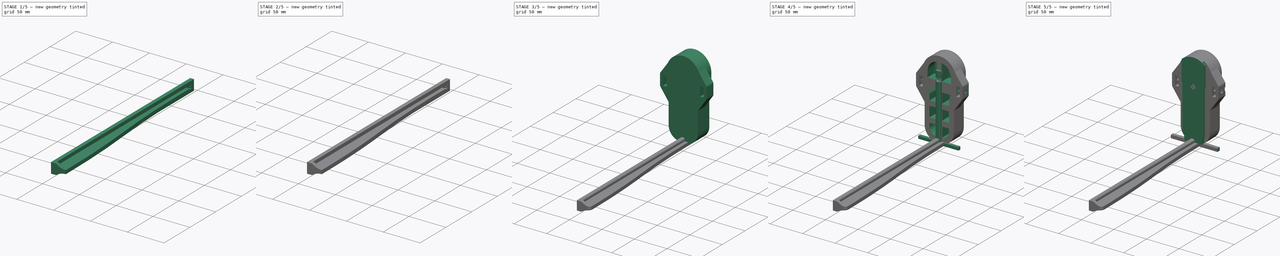
[diagram: build sequence overview — one tinted view per stage of 5, left to right]
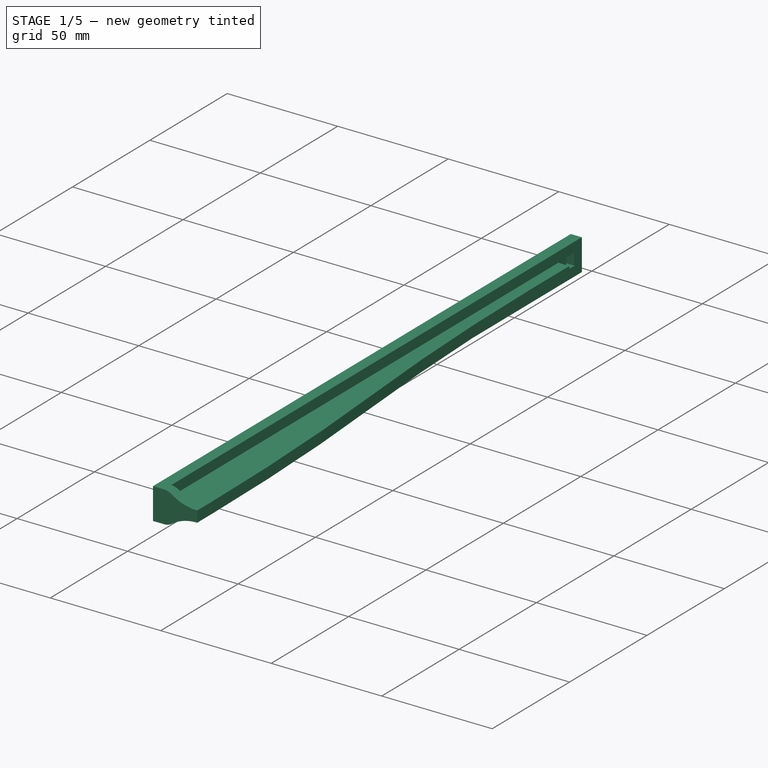
[diagram: stage 1 of 5 — iso view after this stage's code; geometry added in this stage tinted green]
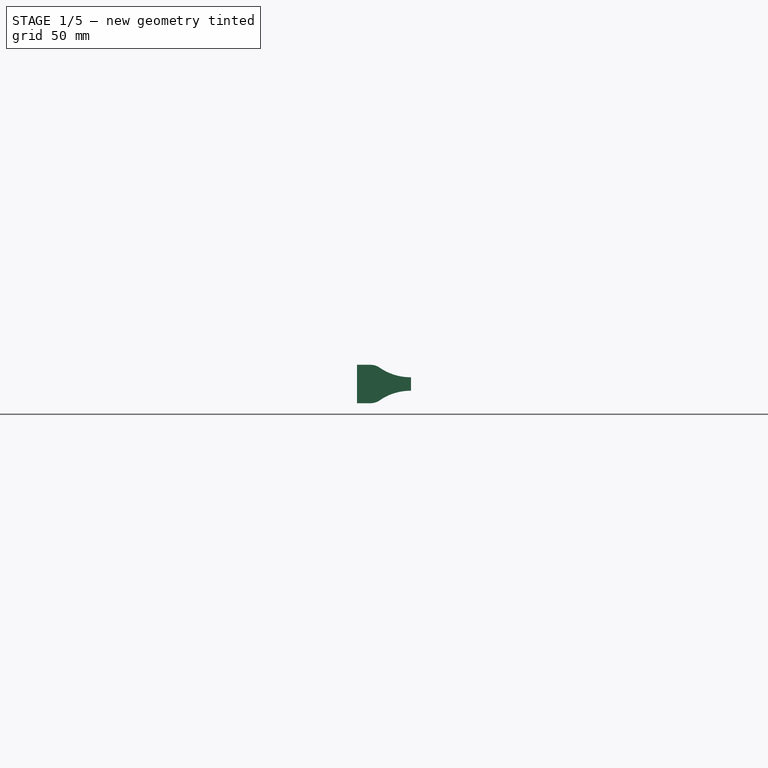
[diagram: stage 1 of 5 — front view after this stage's code; geometry added in this stage tinted green]
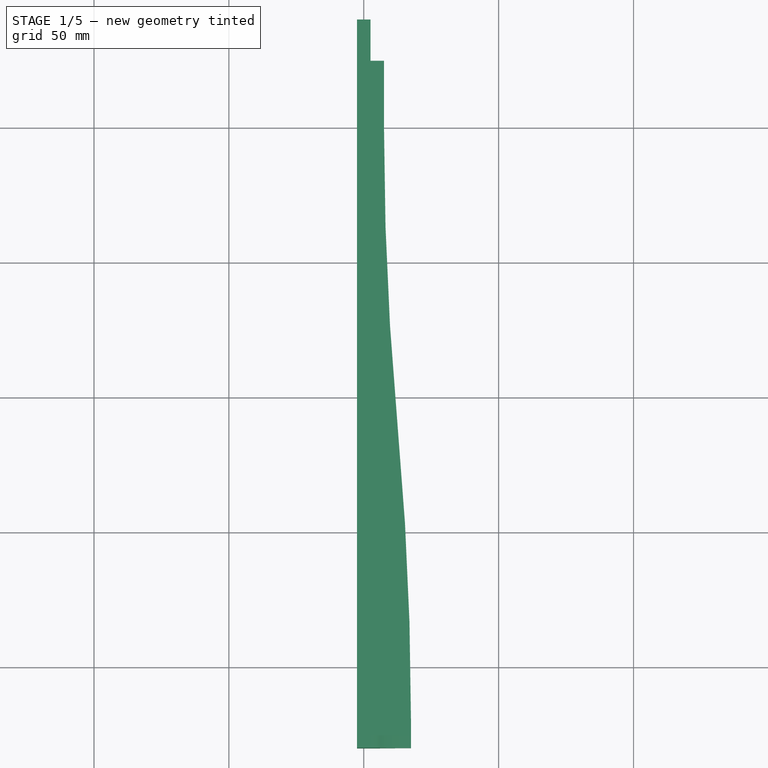
[diagram: stage 1 of 5 — top view after this stage's code; geometry added in this stage tinted green]
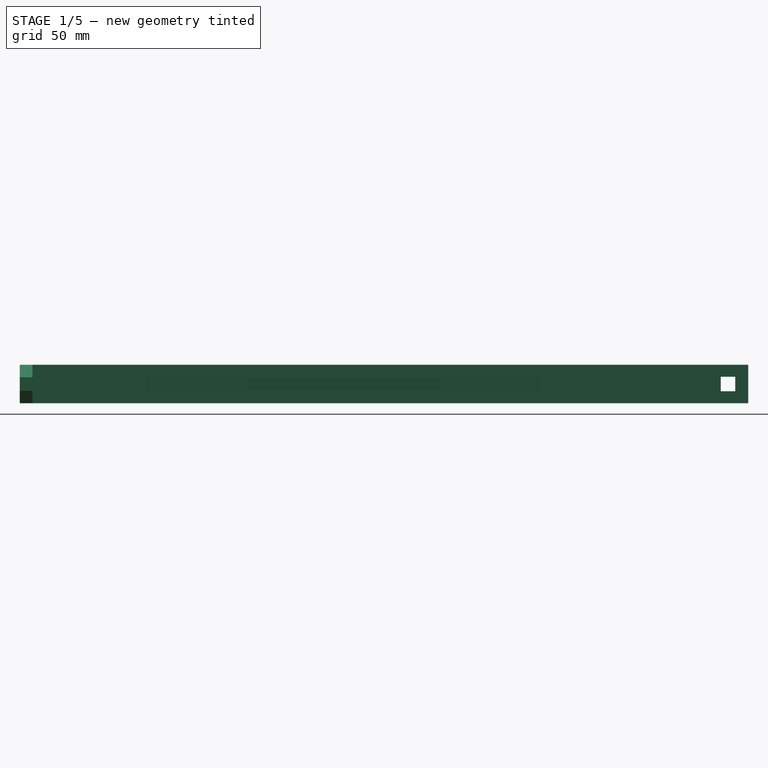
[diagram: stage 1 of 5 — right view after this stage's code; geometry added in this stage tinted green]
FCSTD DOCUMENT  (FreeCAD 0.19R24291 (Git))
Label: TelescopingButtExtension
License: All rights reserved
LicenseURL: http://en.wikipedia.org/wiki/All_rights_reserved
objects: Sketcher::SketchObject×30, PartDesign::Pad×15, PartDesign::Pocket×15, PartDesign::Fillet×10, PartDesign::Body×7, Spreadsheet::Sheet×5, App::Part×3, PartDesign::Mirrored×2, PartDesign::LinearPattern×2
note: 121 computed .brp shape members not serialized (recipe doc carries the construction recipe); baked Part::Feature solids carry a one-line shape summary decoded from their .brp

FEATURE [Spreadsheet::Sheet] Spreadsheet  label="P90Measurements"
  cells = A1=ButtDovetail; D1=Overall; G1=ButtPad; I1=Reference Point; J1=Bottom of pad, just at base of dovetail body; L1=SpaceForTelescopingBar; M1(SpaceForTelescopingBar)==0.584"; A2=DovetailHeight; B2(DovetailHeight)==0.192"; D2=ButtOverallHeight; E2(ButtOverallHeight)==4.733"; G2=PadWidestWidth; H2(PadWidestWidth)==2.017"; A3=DovetailBodyWidth; B3(DovetailBodyWidth)==1.093"; D3=PadBCGHoleFromReferencePoint; E3(PadBCGHoleFromReferencePoint)==2.997"; G3=PadThinnestWidth; H3(PadThinnestWidth)==1.772"; A4=DovetailLedgeHeight; B4(DovetailLedgeHeight)==0.1"; D4=PadBCGHoleDiameter; E4(PadBCGHoleDiameter)==0.277"; G4=PadWidestWidthInnerShoulderDistanceFromReferencePoint; H4(PadWidestWidthInnerShoulderDistanceFromReferencePoint)==2.532"; A5=DovetailLedgeWidestWidth; B5(DovetailLedgeWidestWidth)==1.405"; D5=PadBCGHoleDepth; E5(PadBCGHoleDepth)==0.375"; G5=PadWidestWidthOuterShoulderDistanceFromReferencePoint; H5(PadWidestWidthOuterShoulderDistanceFromReferencePoint)==2.785"; A6=DovetailLedgeMiddleWidth; B6(DovetailLedgeMiddleWidth)==1.32"; G6=PadBottomWidth; H6(PadBottomWidth)==0.3"; A7=DovetailMiddleWidthInsideShoulderDistanceFromReferencePoint; B7(DovetailMiddleWidthInsideShoulderDistanceFromReferencePoint)==0.37"; A8=DovetailMiddleWidthOutsideShoulderDistanceFromReferencePoint; B8(DovetailMiddleWidthOutsideShoulderDistanceFromReferencePoint)==0.484"; A9=DovetailBottobBodyBevelDistanceFromReferencePoint; B9(DovetailBottobBodyBevelDistanceFromReferencePoint)==0.154"; A10=DovetailWidestLedgeStartingPointFromReferencePoint; B10(DovetailWidestLedgeStartingPointFromReferencePoint)==3.222"
FEATURE [Spreadsheet::Sheet] Spreadsheet001  label="ProjectSettings"
  cells = A1=Tolerance; A2=LooseTolerance; B2(LooseTolerance)==0.3mm; A3=TightTolerance; B3(TightTolerance)==0.2mm
FEATURE [Sketcher::SketchObject] Sketch  label="DovetailBodySketch"
  FullyConstrained = true
  MapMode = 5
  Placement = pos=(0,0,0) rot=(1,0,0;1.5708rad)
  Support = -> [XZ_Plane]
  expr: Constraints[9] = <<P90Measurements>>.ButtOverallHeight
  expr: Constraints[10] = <<P90Measurements>>.DovetailBodyWidth - <<ProjectSettings>>.LooseTolerance * 2
  sketch-geometry (4):
    g0: LineSegment StartX=-13.5811 StartY=120.218 StartZ=0 EndX=13.5811 EndY=120.218 EndZ=0
    g1: LineSegment StartX=13.5811 StartY=120.218 StartZ=0 EndX=13.5811 EndY=0 EndZ=0
    g2: LineSegment StartX=13.5811 StartY=0 StartZ=0 EndX=-13.5811 EndY=0 EndZ=0
    g3: LineSegment StartX=-13.5811 StartY=0 StartZ=0 EndX=-13.5811 EndY=120.218 EndZ=0
  constraints (11):
    c: Coincident(g0,g1)
    c: Coincident(g1,g2)
    c: Coincident(g2,g3)
    c: Coincident(g3,g0)
    c: Horizontal(g0)
    c: Vertical(g1)
    c: Vertical(g3)
    c: PointOnObject(g1,g-1)
    c: Symmetric(g1,g2,g-2)
    c: DistanceY(g1,g1) = 120.218
    c: DistanceX(g0,g0) = 27.1622
FEATURE [PartDesign::Pad] Pad  label="DovetailBodyPad"
  Direction = (1,1,1)
  Length = 4.8768
  Length2 = 100
  Placement = pos=(0,0,0) rot=(1,0,0;1.5708rad)
  Profile = -> Sketch
  Type = 0
  expr: Length = <<P90Measurements>>.DovetailHeight
FEATURE [Sketcher::SketchObject] Sketch001  label="DovetailLedgeSketch"
  AttachmentOffset = pos=(0,0,4.8768) rot=(0,0,1;0rad)
  FullyConstrained = true
  MapMode = 5
  Placement = pos=(0,-4.8768,-1.1e-15) rot=(1,0,0;1.5708rad)
  Support = -> [XZ_Plane]
  expr: Constraints[9] = <<P90Measurements>>.ButtOverallHeight
  expr: Constraints[10] = <<P90Measurements>>.DovetailLedgeWidestWidth - <<ProjectSettings>>.LooseTolerance * 2
  expr: .AttachmentOffset.Base.z = <<P90Measurements>>.DovetailHeight
  sketch-geometry (4):
    g0: LineSegment StartX=-17.5435 StartY=120.218 StartZ=0 EndX=17.5435 EndY=120.218 EndZ=0
    g1: LineSegment StartX=17.5435 StartY=120.218 StartZ=0 EndX=17.5435 EndY=0 EndZ=0
    g2: LineSegment StartX=17.5435 StartY=0 StartZ=0 EndX=-17.5435 EndY=0 EndZ=0
    g3: LineSegment StartX=-17.5435 StartY=0 StartZ=0 EndX=-17.5435 EndY=120.218 EndZ=0
  constraints (11):
    c: Coincident(g0,g1)
    c: Coincident(g1,g2)
    c: Coincident(g2,g3)
    c: Coincident(g3,g0)
    c: Horizontal(g0)
    c: Vertical(g1)
    c: Vertical(g3)
    c: PointOnObject(g1,g-1)
    c: Symmetric(g2,g1,g-2)
    c: DistanceY(g1,g1) = 120.218
    c: DistanceX(g0,g0) = 35.087
FEATURE [PartDesign::Pad] Pad001  label="DovetailLedgePad"
  BaseFeature = -> Pad
  Direction = (1,1,1)
  Length = 2.24
  Length2 = 100
  Placement = pos=(0,0,0) rot=(1,0,0;1.5708rad)
  Profile = -> Sketch001
  Refine = true
  Reversed = true
  Type = 0
  expr: Length = <<P90Measurements>>.DovetailLedgeHeight - <<ProjectSettings>>.LooseTolerance
FEATURE [Sketcher::SketchObject] Sketch002  label="DovetailLedgeCutSketch"
  FullyConstrained = true
  MapMode = 5
  Placement = pos=(0,0,0) rot=(1,0,0;1.5708rad)
  Support = -> [XZ_Plane]
  expr: Constraints[31] = <<P90Measurements>>.ButtOverallHeight
  expr: Constraints[37] = <<P90Measurements>>.DovetailMiddleWidthInsideShoulderDistanceFromReferencePoint
  expr: Constraints[35] = <<P90Measurements>>.DovetailBodyWidth - <<ProjectSettings>>.LooseTolerance * 2
  expr: Constraints[36] = <<P90Measurements>>.DovetailLedgeMiddleWidth - <<ProjectSettings>>.LooseTolerance * 2
  expr: Constraints[32] = <<P90Measurements>>.DovetailLedgeWidestWidth - <<ProjectSettings>>.LooseTolerance * 2
  expr: Constraints[38] = <<P90Measurements>>.DovetailMiddleWidthOutsideShoulderDistanceFromReferencePoint
  expr: Constraints[39] = <<P90Measurements>>.DovetailWidestLedgeStartingPointFromReferencePoint
  sketch-geometry (16):
    g0: LineSegment StartX=-27.5435 StartY=130.218 StartZ=0 EndX=27.5435 EndY=130.218 EndZ=0
    g1: LineSegment StartX=27.5435 StartY=130.218 StartZ=0 EndX=27.5435 EndY=-10 EndZ=0
    g2: LineSegment StartX=27.5435 StartY=-10 StartZ=0 EndX=-27.5435 EndY=-10 EndZ=0
    g3: LineSegment StartX=-27.5435 StartY=-10 StartZ=0 EndX=-27.5435 EndY=130.218 EndZ=0
    g4: LineSegment StartX=-13.5811 StartY=0 StartZ=0 EndX=13.5811 EndY=0 EndZ=0
    g5: LineSegment StartX=13.5811 StartY=0 StartZ=0 EndX=13.5811 EndY=9.398 EndZ=0
    g6: LineSegment StartX=13.5811 StartY=9.398 StartZ=0 EndX=16.464 EndY=12.2936 EndZ=0
    g7: LineSegment StartX=16.464 StartY=12.2936 StartZ=0 EndX=16.464 EndY=81.8388 EndZ=0
    g8: LineSegment StartX=16.464 StartY=81.8388 StartZ=0 EndX=17.5435 EndY=81.8388 EndZ=0
    g9: LineSegment StartX=17.5435 StartY=81.8388 StartZ=0 EndX=17.5435 EndY=120.218 EndZ=0
    g10: LineSegment StartX=17.5435 StartY=120.218 StartZ=0 EndX=-17.5435 EndY=120.218 EndZ=0
    g11: LineSegment StartX=-17.5435 StartY=120.218 StartZ=0 EndX=-17.5435 EndY=81.8388 EndZ=0
    g12: LineSegment StartX=-17.5435 StartY=81.8388 StartZ=0 EndX=-16.464 EndY=81.8388 EndZ=0
    g13: LineSegment StartX=-16.464 StartY=81.8388 StartZ=0 EndX=-16.464 EndY=12.2936 EndZ=0
    g14: LineSegment StartX=-16.464 StartY=12.2936 StartZ=0 EndX=-13.5811 EndY=9.398 EndZ=0
    g15: LineSegment StartX=-13.5811 StartY=9.398 StartZ=0 EndX=-13.5811 EndY=0 EndZ=0
  constraints (45):
    c: Coincident(g0,g1)
    c: Coincident(g1,g2)
    c: Coincident(g2,g3)
    c: Coincident(g3,g0)
    c: Horizontal(g0)
    c: Horizontal(g2)
    c: Vertical(g1)
    c: Vertical(g3)
    c: PointOnObject(g4,g-1)
    c: Coincident(g4,g5)
    c: Vertical(g5)
    c: Coincident(g5,g6)
    c: Coincident(g6,g7)
    c: Vertical(g7)
    c: Coincident(g7,g8)
    c: Horizontal(g8)
    c: Coincident(g8,g9)
    c: Vertical(g9)
    c: Coincident(g9,g10)
    c: Coincident(g10,g11)
    c: Vertical(g11)
    c: Coincident(g11,g12)
    c: Horizontal(g12)
    c: Coincident(g12,g13)
    c: Vertical(g13)
    c: Coincident(g13,g14)
    c: Coincident(g14,g15)
    c: Coincident(g15,g4)
    c: Vertical(g15)
    c: Horizontal(g14,g5)
    c: Horizontal(g13,g6)
    c: DistanceY(g4,g9) = 120.218
    c: DistanceX(g10,g10) = 35.087
    c: Symmetric(g10,g9,g-2)
    c: Symmetric(g12,g7,g-2)
    c: DistanceX(g4,g4) = 27.1622
    c: DistanceX(g12,g7) = 32.928
    c: DistanceY(g14) = 9.398
    c: DistanceY(g4,g13) = 12.2936
    c: DistanceY(g-1,g7) = 81.8388
    c: DistanceY(g10,g0) = 10
    c: DistanceX(g0,g10) = 10
    c: DistanceX(g9,g1) = 10
    c: DistanceY(g1,g4) = 10
    c: Symmetric(g4,g4,g-2)
FEATURE [PartDesign::Pocket] Pocket  label="DovetailLedgeCutPocket"
  BaseFeature = -> Pad001
  Length = 5
  Length2 = 100
  Placement = pos=(0,0,0) rot=(1,0,0;1.5708rad)
  Profile = -> Sketch002
  Reversed = true
  Type = 1
FEATURE [Sketcher::SketchObject] Sketch003  label="PadBodySketch"
  FullyConstrained = true
  MapMode = 5
  Placement = pos=(0,0,0) rot=(1,0,0;1.5708rad)
  Support = -> [XZ_Plane]
  expr: Constraints[20] = <<P90Measurements>>.ButtOverallHeight
  expr: Constraints[21] = <<P90Measurements>>.PadWidestWidth
  expr: Constraints[19] = <<P90Measurements>>.PadThinnestWidth
  expr: Constraints[22] = <<P90Measurements>>.PadWidestWidthOuterShoulderDistanceFromReferencePoint
  expr: Constraints[27] = <<P90Measurements>>.PadWidestWidthInnerShoulderDistanceFromReferencePoint
  sketch-geometry (12):
    g0: LineSegment StartX=-22.5044 StartY=0 StartZ=0 EndX=22.5044 EndY=0 EndZ=0
    g1: LineSegment StartX=22.5044 StartY=0 StartZ=0 EndX=22.5044 EndY=63.2152 EndZ=0
    g2: LineSegment StartX=-22.5044 StartY=63.2152 StartZ=0 EndX=-22.5044 EndY=0 EndZ=0
    g3: LineSegment StartX=-25.6159 StartY=120.218 StartZ=0 EndX=25.6159 EndY=120.218 EndZ=0
    g4: LineSegment StartX=25.6159 StartY=120.218 StartZ=0 EndX=25.6159 EndY=70.739 EndZ=0
    g5: LineSegment StartX=-25.6159 StartY=70.739 StartZ=0 EndX=-25.6159 EndY=120.218 EndZ=0
    g6: LineSegment StartX=-25.3621 StartY=69.6414 StartZ=0 EndX=-22.7582 EndY=64.3128 EndZ=0
    g7: LineSegment StartX=25.3621 StartY=69.6414 StartZ=0 EndX=22.7582 EndY=64.3128 EndZ=0
    g8: ArcOfCircle CenterX=-23.1159 CenterY=70.739 CenterZ=0 NormalX=0 NormalY=0 NormalZ=1 AngleXU=0 Radius=2.5 StartAngle=3.14159 EndAngle=3.59612
    g9: ArcOfCircle CenterX=-25.0044 CenterY=63.2152 CenterZ=0 NormalX=0 NormalY=0 NormalZ=1 AngleXU=0 Radius=2.5 StartAngle=2e-16 EndAngle=0.454529
    g10: ArcOfCircle CenterX=23.1159 CenterY=70.739 CenterZ=0 NormalX=0 NormalY=0 NormalZ=1 AngleXU=0 Radius=2.5 StartAngle=5.82866 EndAngle=6.28319
    g11: ArcOfCircle CenterX=25.0044 CenterY=63.2152 CenterZ=0 NormalX=0 NormalY=0 NormalZ=1 AngleXU=0 Radius=2.5 StartAngle=2.68706 EndAngle=3.14159
  constraints (28):
    c: Coincident(g0,g1)
    c: Coincident(g2,g0)
    c: Vertical(g1)
    c: Vertical(g2)
    c: PointOnObject(g0,g-1)
    c: Coincident(g3,g4)
    c: Coincident(g5,g3)
    c: Vertical(g4)
    c: Vertical(g5)
    c: Tangent(g8,g5) = 1.5708
    c: Tangent(g8,g6) = -1.5708
    c: Tangent(g9,g6) = 1.5708
    c: Tangent(g11,g1) = 1.5708
    c: Tangent(g11,g7) = -1.5708
    c: Tangent(g7,g10) = 1.5708
    c: Tangent(g10,g4) = 1.5708
    c: Tangent(g9,g2) = 1.5708
    c: Symmetric(g0,g0,g-2)
    c: Symmetric(g3,g3,g-2)
    c: DistanceX(g0,g0) = 45.0088
    c: DistanceY(g0,g3) = 120.218
    c: DistanceX(g3,g3) = 51.2318
    c: DistanceY(g-1,g8) = 70.739
    c: Symmetric(g7,g6,g-2)
    c: Symmetric(g6,g7,g-2)
    c: Equal(g11,g10)
    c: Diameter(g11) = 5
    c: DistanceY(g6) = 64.3128
FEATURE [PartDesign::Pad] Pad002  label="PadBodyPad"
  BaseFeature = -> Pocket
  Direction = (1,1,1)
  Length = 15
  Length2 = 100
  Placement = pos=(0,0,0) rot=(1,0,0;1.5708rad)
  Profile = -> Sketch003
  Reversed = true
  Type = 0
FEATURE [Sketcher::SketchObject] Sketch008  label="TelescoptingPadBodySketch"
  FullyConstrained = true
  MapMode = 5
  Placement = pos=(0,0,0) rot=(1,0,0;1.5708rad)
  Support = -> [XZ_Plane002]
  expr: Constraints[27] = <<P90Measurements>>.PadWidestWidthInnerShoulderDistanceFromReferencePoint
  expr: Constraints[22] = <<P90Measurements>>.PadWidestWidthOuterShoulderDistanceFromReferencePoint
  expr: Constraints[19] = <<P90Measurements>>.PadThinnestWidth
  expr: Constraints[21] = <<P90Measurements>>.PadWidestWidth
  expr: Constraints[20] = <<P90Measurements>>.ButtOverallHeight
  sketch-geometry (12):
    g0: LineSegment StartX=-22.5044 StartY=0 StartZ=0 EndX=22.5044 EndY=0 EndZ=0
    g1: LineSegment StartX=22.5044 StartY=0 StartZ=0 EndX=22.5044 EndY=63.2152 EndZ=0
    g2: LineSegment StartX=-22.5044 StartY=63.2152 StartZ=0 EndX=-22.5044 EndY=0 EndZ=0
    g3: LineSegment StartX=-25.6159 StartY=120.218 StartZ=0 EndX=25.6159 EndY=120.218 EndZ=0
    g4: LineSegment StartX=25.6159 StartY=120.218 StartZ=0 EndX=25.6159 EndY=70.739 EndZ=0
    g5: LineSegment StartX=-25.6159 StartY=70.739 StartZ=0 EndX=-25.6159 EndY=120.218 EndZ=0
    g6: LineSegment StartX=-25.3621 StartY=69.6414 StartZ=0 EndX=-22.7582 EndY=64.3128 EndZ=0
    g7: LineSegment StartX=25.3621 StartY=69.6414 StartZ=0 EndX=22.7582 EndY=64.3128 EndZ=0
    g8: ArcOfCircle CenterX=-23.1159 CenterY=70.739 CenterZ=0 NormalX=0 NormalY=0 NormalZ=1 AngleXU=0 Radius=2.5 StartAngle=3.14159 EndAngle=3.59612
    g9: ArcOfCircle CenterX=-25.0044 CenterY=63.2152 CenterZ=0 NormalX=0 NormalY=0 NormalZ=1 AngleXU=0 Radius=2.5 StartAngle=0 EndAngle=0.454529
    g10: ArcOfCircle CenterX=23.1159 CenterY=70.739 CenterZ=0 NormalX=0 NormalY=0 NormalZ=1 AngleXU=0 Radius=2.5 StartAngle=5.82866 EndAngle=6.28319
    g11: ArcOfCircle CenterX=25.0044 CenterY=63.2152 CenterZ=0 NormalX=0 NormalY=0 NormalZ=1 AngleXU=0 Radius=2.5 StartAngle=2.68706 EndAngle=3.14159
  constraints (29):
    c: Coincident(g0,g1)
    c: Coincident(g2,g0)
    c: Vertical(g1)
    c: Vertical(g2)
    c: PointOnObject(g0,g-1)
    c: Coincident(g3,g4)
    c: Coincident(g5,g3)
    c: Vertical(g4)
    c: Vertical(g5)
    c: Tangent(g8,g5) = 1.5708
    c: Tangent(g8,g6) = -1.5708
    c: Tangent(g9,g6) = 1.5708
    c: Tangent(g11,g1) = 1.5708
    c: Tangent(g11,g7) = -1.5708
    c: Tangent(g7,g10) = 1.5708
    c: Tangent(g10,g4) = 1.5708
    c: Tangent(g9,g2) = 1.5708
    c: Symmetric(g0,g0,g-2)
    c: Symmetric(g3,g3,g-2)
    c: DistanceX(g0,g0) = 45.0088
    c: DistanceY(g0,g3) = 120.218
    c: DistanceX(g3,g3) = 51.2318
    c: DistanceY(g-1,g8) = 70.739
    c: Symmetric(g7,g6,g-2)
    c: Symmetric(g6,g7,g-2)
    c: Equal(g11,g10)
    c: Diameter(g11) = 5
    c: DistanceY(g6) = 64.3128
    c: Angle(g1,g7) = 2.68706  'PadAngle'
FEATURE [PartDesign::Pad] Pad006  label="TelescoptingPadBodyPad"
  Direction = (1,1,1)
  Length = 25
  Length2 = 100
  Placement = pos=(0,0,0) rot=(1,0,0;1.5708rad)
  Profile = -> Sketch008
  Reversed = true
  Type = 0
FEATURE [Sketcher::SketchObject] Sketch024  label="BarCrosspinHoleSketch001"
  FullyConstrained = true
  MapMode = 5
  Placement = pos=(0,0,0) rot=(0.57735,0.57735,0.57735;2.0944rad)
  Support = -> [YZ_Plane007]
  expr: Constraints[10] = <<TelescopingBarSettings>>.BarOffsetFromCenter - <<TelescopingBarSettings>>.BarThickness + <<ProjectSettings>>.TightTolerance
  expr: Constraints[7] = <<TelescopingBarSettings>>.CrosspinThickness + <<ProjectSettings>>.TightTolerance * 2
  sketch-geometry (4):
    g0: LineSegment StartX=29.8 StartY=2.7 StartZ=0 EndX=35.2 EndY=2.7 EndZ=0
    g1: LineSegment StartX=35.2 StartY=2.7 StartZ=0 EndX=35.2 EndY=-2.7 EndZ=0
    g2: LineSegment StartX=35.2 StartY=-2.7 StartZ=0 EndX=29.8 EndY=-2.7 EndZ=0
    g3: LineSegment StartX=29.8 StartY=-2.7 StartZ=0 EndX=29.8 EndY=2.7 EndZ=0
  constraints (11):
    c: Coincident(g0,g1)
    c: Coincident(g1,g2)
    c: Coincident(g2,g3)
    c: Coincident(g3,g0)
    c: Horizontal(g0)
    c: Horizontal(g2)
    c: Vertical(g1)
    c: DistanceX(g0,g0) = 5.4
    c: Equal(g0,g3)
    c: Symmetric(g0,g2,g-1)
    c: DistanceX(g-1,g0) = 35.2
FEATURE [Sketcher::SketchObject] Sketch025  label="MainBarSketch001"
  AttachmentOffset = pos=(0,0,-40) rot=(0,0,1;0rad)
  FullyConstrained = true
  MapMode = 5
  Placement = pos=(0,40,8.9e-15) rot=(1,0,0;1.5708rad)
  Support = -> [XZ_Plane007]
  expr: Constraints[8] = <<TelescopingBarSettings>>.BarThickness
  expr: .AttachmentOffset.Base.z = -1 * <<TelescopingBarSettings>>.BarOffsetFromCenter
  expr: Constraints[9] = <<TelescopingBarSettings>>.BarHeight
  sketch-geometry (4):
    g0: LineSegment StartX=-2.5 StartY=7.1168 StartZ=0 EndX=2.5 EndY=7.1168 EndZ=0
    g1: LineSegment StartX=2.5 StartY=7.1168 StartZ=0 EndX=2.5 EndY=-7.1168 EndZ=0
    g2: LineSegment StartX=2.5 StartY=-7.1168 StartZ=0 EndX=-2.5 EndY=-7.1168 EndZ=0
    g3: LineSegment StartX=-2.5 StartY=-7.1168 StartZ=0 EndX=-2.5 EndY=7.1168 EndZ=0
  constraints (10):
    c: Coincident(g0,g1)
    c: Coincident(g1,g2)
    c: Coincident(g2,g3)
    c: Coincident(g3,g0)
    c: Horizontal(g2)
    c: Vertical(g3)
    c: Symmetric(g1,g0,g-1)
    c: Symmetric(g0,g0,g-2)
    c: DistanceX(g0,g0) = 5
    c: DistanceY(g3,g3) = 14.2336
FEATURE [PartDesign::Pad] Pad013  label="MainBarPad001"
  Direction = (1,1,1)
  Length = 270
  Length2 = 100
  Placement = pos=(0,0,0) rot=(1,0,0;1.5708rad)
  Profile = -> Sketch025
  Type = 0
  expr: Length = <<TelescopingBarSettings>>.BarLength
FEATURE [Sketcher::SketchObject] Sketch026  label="CrossSupportBarSketch001"
  FullyConstrained = true
  MapMode = 5
  Support = -> [XY_Plane007]
  expr: Constraints[13] = <<TelescopingBarSettings>>.BarLength - <<TelescoptingPadBodyPad>>.Length + 10mm - <<ProjectSettings>>.TightTolerance
  expr: Constraints[8] = <<TelescopingBarSettings>>.BarOffsetFromCenter - <<TelescoptingPadBodyPad>>.Length - <<ProjectSettings>>.TightTolerance + 10mm
  expr: Constraints[12] = <<TelescopingBarSettings>>.BarThickness * 2
  expr: Constraints[11] = <<TelescopingBarSettings>>.BarThickness * 3
  expr: Constraints[10] = <<TelescopingBarSettings>>.BarThickness / 2
  expr: Constraints[9] = <<TelescopingBarSettings>>.BarThickness
  sketch-geometry (7):
    g0: LineSegment StartX=2.5 StartY=-230 StartZ=0 EndX=17.5 EndY=-230 EndZ=0
    g1: LineSegment StartX=2.5 StartY=24.8 StartZ=0 EndX=2.5 EndY=-230 EndZ=0
    g2: ArcOfCircle CenterX=1220 CenterY=5.94e-13 CenterZ=0 NormalX=0 NormalY=0 NormalZ=1 AngleXU=0 Radius=1212.5 StartAngle=3.14159 EndAngle=3.23244
    g3: ArcOfCircle CenterX=-1195 CenterY=-220 CenterZ=0 NormalX=0 NormalY=0 NormalZ=1 AngleXU=0 Radius=1212.5 StartAngle=0 EndAngle=0.0908466
    g4: LineSegment StartX=17.5 StartY=-230 StartZ=0 EndX=17.5 EndY=-220 EndZ=0
    g5: LineSegment StartX=2.5 StartY=24.8 StartZ=0 EndX=7.5 EndY=24.8 EndZ=0
    g6: LineSegment StartX=7.5 StartY=24.8 StartZ=0 EndX=7.5 EndY=5.933e-13 EndZ=0
  constraints (21):
    c: Coincident(g1,g0)
    c: Horizontal(g0)
    c: Vertical(g1)
    c: Horizontal(g2,g2)
    c: Tangent(g3,g2) = 1.5708
    c: Coincident(g4,g0)
    c: Vertical(g4)
    c: Tangent(g4,g3) = -1.5708
    c: DistanceY(g-1,g1) = 24.8
    c: DistanceX(g1,g2) = 5
    c: DistanceX(g-1,g1) = 2.5
    c: DistanceX(g0,g0) = 15
    c: DistanceY(g0,g3) = 10
    c: DistanceY(g0,g1) = 254.8
    c: Equal(g3,g2)
    c: Coincident(g1,g5)
    c: Horizontal(g5)
    c: Coincident(g5,g6)
    c: Vertical(g6)
    c: Coincident(g2,g6)
    c: Horizontal(g2,g-1)
FEATURE [PartDesign::Pad] Pad012  label="CrossSupportBarPad001"
  BaseFeature = -> Pad013
  Direction = (1,1,1)
  Length = 5
  Length2 = 100
  Midplane = true
  Placement = pos=(0,0,0) rot=(1,0,0;1.5708rad)
  Profile = -> Sketch026
  Type = 0
  expr: Length = <<TelescopingBarSettings>>.BarThickness
FEATURE [Sketcher::SketchObject] Sketch023  label="BarEndplateSketch001"
  FullyConstrained = true
  MapMode = 5
  Placement = pos=(0,-230,5.11e-14) rot=(1,0,0;1.5708rad)
  Support = -> [Pad012]
  expr: Constraints[9] = <<TelescopingBarSettings>>.BarThickness
  expr: Constraints[2] = <<TelescopingBarSettings>>.BarThickness / 2
  expr: Constraints[4] = <<TelescopingBarSettings>>.BarThickness
  expr: Constraints[3] = <<TelescopingBarSettings>>.BarThickness * 4
  expr: Constraints[0] = <<TelescopingBarSettings>>.BarHeight
  sketch-geometry (8):
    g0: LineSegment StartX=17.5 StartY=2.5 StartZ=0 EndX=17.5 EndY=-2.5 EndZ=0
    g1: LineSegment StartX=-2.5 StartY=-7.1168 StartZ=0 EndX=-2.5 EndY=7.1168 EndZ=0
    g2: LineSegment StartX=-2.5 StartY=7.1168 StartZ=0 EndX=2.5 EndY=7.1168 EndZ=0
    g3: LineSegment StartX=-2.5 StartY=-7.1168 StartZ=0 EndX=2.5 EndY=-7.1168 EndZ=0
    g4: ArcOfCircle CenterX=2.5 CenterY=1.1168 CenterZ=0 NormalX=0 NormalY=0 NormalZ=1 AngleXU=0 Radius=6 StartAngle=0.965598 EndAngle=1.5708
    g5: ArcOfCircle CenterX=2.5 CenterY=-1.1168 CenterZ=0 NormalX=0 NormalY=0 NormalZ=1 AngleXU=0 Radius=6 StartAngle=4.71239 EndAngle=5.31759
    g6: ArcOfCircle CenterX=17.2921 CenterY=22.4989 CenterZ=0 NormalX=0 NormalY=0 NormalZ=1 AngleXU=0 Radius=20 StartAngle=4.10719 EndAngle=4.72279
    g7: ArcOfCircle CenterX=17.2921 CenterY=-22.4989 CenterZ=0 NormalX=0 NormalY=0 NormalZ=1 AngleXU=0 Radius=20 StartAngle=1.5604 EndAngle=2.17599
  constraints (21):
    c: DistanceY(g1,g1) = 14.2336
    c: Symmetric(g1,g1,g-1)
    c: DistanceX(g1,g-1) = 2.5
    c: DistanceX(g1,g0) = 20
    c: DistanceY(g0,g0) = 5
    c: Symmetric(g0,g0,g-1)
    c: Coincident(g2,g1)
    c: Coincident(g3,g1)
    c: Horizontal(g3)
    c: DistanceX(g3,g3) = 5
    c: Symmetric(g3,g2,g-1)
    c: Tangent(g5,g3) = -1.5708
    c: Tangent(g4,g2) = 1.5708
    c: Equal(g5,g4)
    c: Tangent(g6,g4) = 1.5708
    c: Tangent(g5,g7) = 1.5708
    c: Equal(g7,g6)
    c: Diameter(g4) = 12
    c: Diameter(g6) = 40
    c: Coincident(g0,g7)
    c: Coincident(g0,g6)
FEATURE [PartDesign::Pad] Pad014  label="BarEndplatePad001"
  BaseFeature = -> Pad012
  Direction = (1,1,1)
  Length = 4.7
  Length2 = 100
  Placement = pos=(0,0,0) rot=(1,0,0;1.5708rad)
  Profile = -> Sketch023
  Reversed = true
  Type = 0
  expr: Length = <<TelescopingBarSettings>>.BarThickness - <<ProjectSettings>>.LooseTolerance
FEATURE [PartDesign::Pocket] Pocket011  label="BarCrosspinHolePocket001"
  BaseFeature = -> Pad014
  Length = 5
  Length2 = 100
  Midplane = true
  Placement = pos=(0,0,0) rot=(1,0,0;1.5708rad)
  Profile = -> Sketch024
  Type = 1
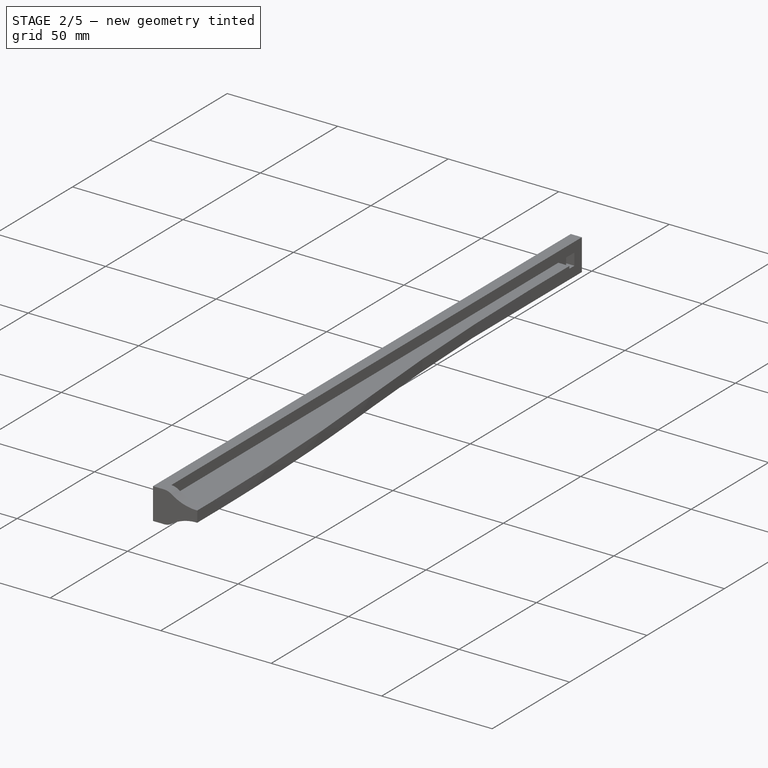
[diagram: stage 2 of 5 — iso view after this stage's code; geometry added in this stage tinted green]
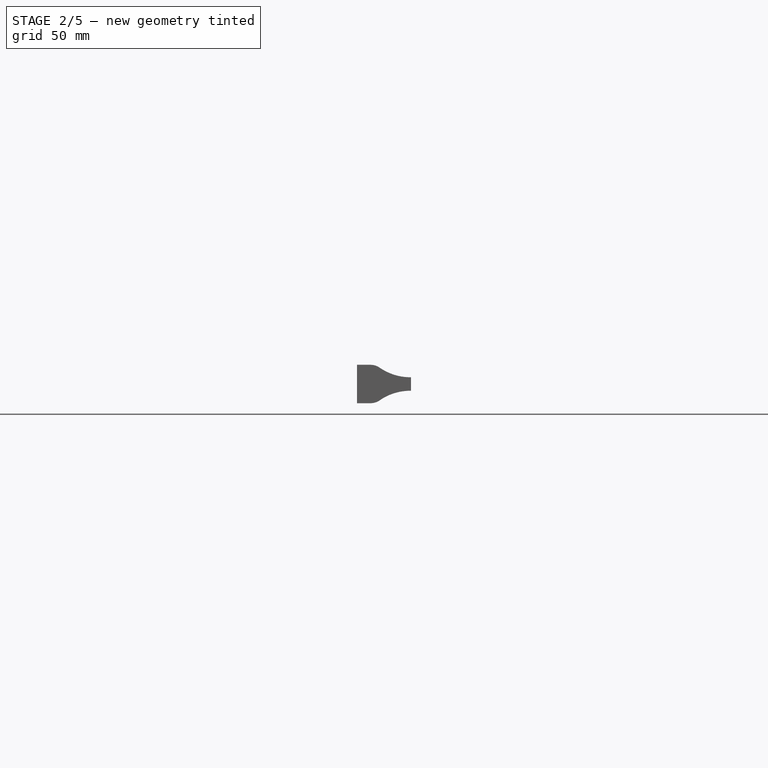
[diagram: stage 2 of 5 — front view after this stage's code; geometry added in this stage tinted green]
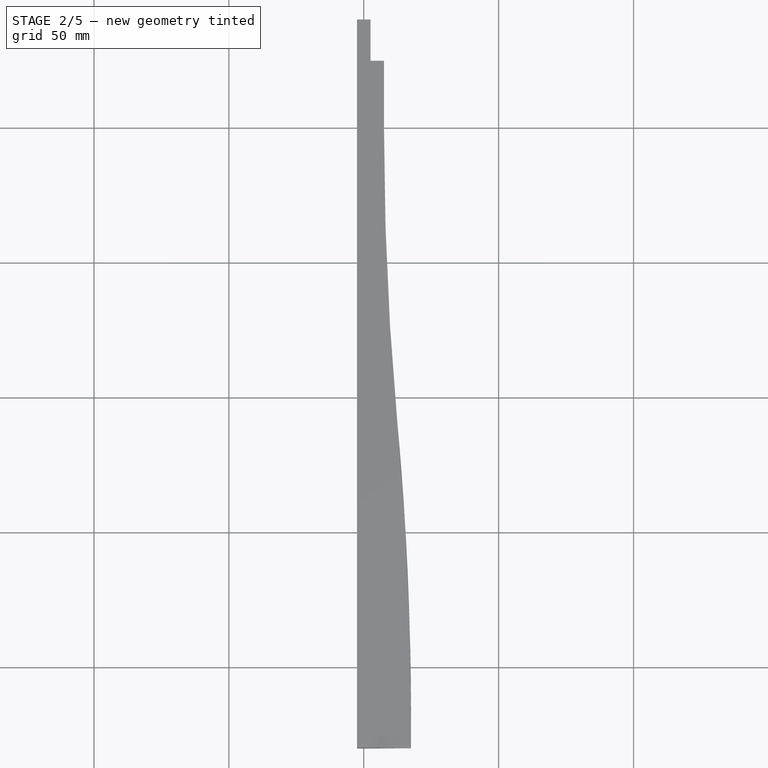
[diagram: stage 2 of 5 — top view after this stage's code; geometry added in this stage tinted green]
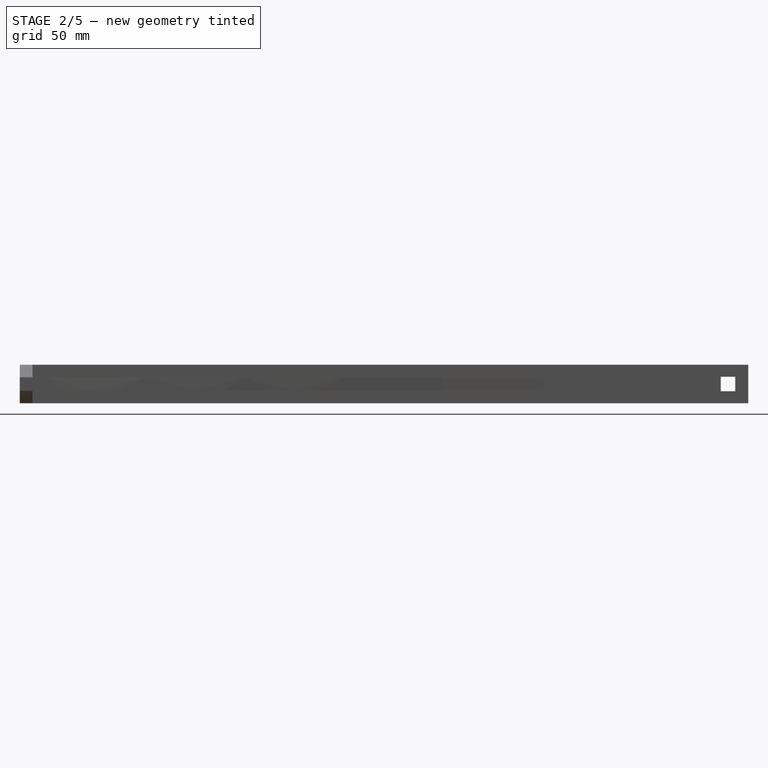
[diagram: stage 2 of 5 — right view after this stage's code; geometry added in this stage tinted green]
FEATURE [Sketcher::SketchObject] Sketch005  label="MainBarSketch"
  AttachmentOffset = pos=(0,0,-40) rot=(0,0,1;0rad)
  FullyConstrained = true
  MapMode = 5
  Placement = pos=(0,40,8.9e-15) rot=(1,0,0;1.5708rad)
  Support = -> [XZ_Plane001]
  expr: Constraints[9] = <<TelescopingBarSettings>>.BarHeight
  expr: .AttachmentOffset.Base.z = -1 * <<TelescopingBarSettings>>.BarOffsetFromCenter
  expr: Constraints[8] = <<TelescopingBarSettings>>.BarThickness
  sketch-geometry (4):
    g0: LineSegment StartX=-2.5 StartY=7.1168 StartZ=0 EndX=2.5 EndY=7.1168 EndZ=0
    g1: LineSegment StartX=2.5 StartY=7.1168 StartZ=0 EndX=2.5 EndY=-7.1168 EndZ=0
    g2: LineSegment StartX=2.5 StartY=-7.1168 StartZ=0 EndX=-2.5 EndY=-7.1168 EndZ=0
    g3: LineSegment StartX=-2.5 StartY=-7.1168 StartZ=0 EndX=-2.5 EndY=7.1168 EndZ=0
  constraints (10):
    c: Coincident(g0,g1)
    c: Coincident(g1,g2)
    c: Coincident(g2,g3)
    c: Coincident(g3,g0)
    c: Horizontal(g2)
    c: Vertical(g3)
    c: Symmetric(g1,g0,g-1)
    c: Symmetric(g0,g0,g-2)
    c: DistanceX(g0,g0) = 5
    c: DistanceY(g3,g3) = 14.2336
FEATURE [Spreadsheet::Sheet] Spreadsheet002  label="TelescopingBarSettings"
  cells = A1=BarOffsetFromCenter; B1(BarOffsetFromCenter)==<<PadBodyPad>>.Length + <<TelescoptingPadBodyPad>>.Length; A2=LengthFromButtToChargingHandleShelf; B2(LengthFromButtToChargingHandleShelf)==310mm; A3=BarLength; B3(BarLength)==270mm; A4=BarThickness; B4(BarThickness)==5mm; A5=CrosspinThickness; B5(CrosspinThickness)==BarThickness; A6=BarHeight; B6(BarHeight)==<<P90Measurements>>.SpaceForTelescopingBar - <<ProjectSettings>>.LooseTolerance * 2; A7=LockingPinThickness; B7(LockingPinThickness)==5mm; A8=BarNumberOfKnotches; B8(BarNumberOfKnotches)=6
FEATURE [PartDesign::Pad] Pad003  label="MainBarPad"
  Direction = (1,1,1)
  Length = 270
  Length2 = 100
  Placement = pos=(0,0,0) rot=(1,0,0;1.5708rad)
  Profile = -> Sketch005
  Type = 0
  expr: Length = <<TelescopingBarSettings>>.BarLength
FEATURE [Sketcher::SketchObject] Sketch006  label="CrossSupportBarSketch"
  FullyConstrained = true
  MapMode = 5
  Support = -> [XY_Plane001]
  expr: Constraints[9] = <<TelescopingBarSettings>>.BarThickness
  expr: Constraints[10] = <<TelescopingBarSettings>>.BarThickness / 2
  expr: Constraints[11] = <<TelescopingBarSettings>>.BarThickness * 3
  expr: Constraints[12] = <<TelescopingBarSettings>>.BarThickness * 2
  expr: Constraints[8] = <<TelescopingBarSettings>>.BarOffsetFromCenter - <<TelescoptingPadBodyPad>>.Length - <<ProjectSettings>>.TightTolerance + 10mm
  expr: Constraints[13] = <<TelescopingBarSettings>>.BarLength - <<TelescoptingPadBodyPad>>.Length + 10mm - <<ProjectSettings>>.TightTolerance
  sketch-geometry (7):
    g0: LineSegment StartX=2.5 StartY=-230 StartZ=0 EndX=17.5 EndY=-230 EndZ=0
    g1: LineSegment StartX=2.5 StartY=24.8 StartZ=0 EndX=2.5 EndY=-230 EndZ=0
    g2: ArcOfCircle CenterX=1220 CenterY=2.97e-13 CenterZ=0 NormalX=0 NormalY=0 NormalZ=1 AngleXU=0 Radius=1212.5 StartAngle=3.14159 EndAngle=3.23244
    g3: ArcOfCircle CenterX=-1195 CenterY=-220 CenterZ=0 NormalX=0 NormalY=0 NormalZ=1 AngleXU=0 Radius=1212.5 StartAngle=0 EndAngle=0.0908466
    g4: LineSegment StartX=17.5 StartY=-230 StartZ=0 EndX=17.5 EndY=-220 EndZ=0
    g5: LineSegment StartX=2.5 StartY=24.8 StartZ=0 EndX=7.5 EndY=24.8 EndZ=0
    g6: LineSegment StartX=7.5 StartY=24.8 StartZ=0 EndX=7.5 EndY=2.984e-13 EndZ=0
  constraints (21):
    c: Coincident(g1,g0)
    c: Horizontal(g0)
    c: Vertical(g1)
    c: Horizontal(g2,g2)
    c: Tangent(g3,g2) = 1.5708
    c: Coincident(g4,g0)
    c: Vertical(g4)
    c: Tangent(g4,g3) = -1.5708
    c: DistanceY(g-1,g1) = 24.8
    c: DistanceX(g1,g2) = 5
    c: DistanceX(g-1,g1) = 2.5
    c: DistanceX(g0,g0) = 15
    c: DistanceY(g0,g3) = 10
    c: DistanceY(g0,g1) = 254.8
    c: Equal(g3,g2)
    c: Coincident(g1,g5)
    c: Horizontal(g5)
    c: Coincident(g5,g6)
    c: Vertical(g6)
    c: Coincident(g2,g6)
    c: Horizontal(g2,g-1)
FEATURE [PartDesign::Pad] Pad004  label="CrossSupportBarPad"
  BaseFeature = -> Pad003
  Direction = (1,1,1)
  Length = 5
  Length2 = 100
  Midplane = true
  Placement = pos=(0,0,0) rot=(1,0,0;1.5708rad)
  Profile = -> Sketch006
  Type = 0
  expr: Length = <<TelescopingBarSettings>>.BarThickness
FEATURE [Sketcher::SketchObject] Sketch007  label="BarEndplateSketch"
  FullyConstrained = true
  MapMode = 5
  Placement = pos=(0,-230,5.11e-14) rot=(1,0,0;1.5708rad)
  Support = -> [Pad004]
  expr: Constraints[0] = <<TelescopingBarSettings>>.BarHeight
  expr: Constraints[3] = <<TelescopingBarSettings>>.BarThickness * 4
  expr: Constraints[4] = <<TelescopingBarSettings>>.BarThickness
  expr: Constraints[2] = <<TelescopingBarSettings>>.BarThickness / 2
  expr: Constraints[9] = <<TelescopingBarSettings>>.BarThickness
  sketch-geometry (8):
    g0: LineSegment StartX=17.5 StartY=2.5 StartZ=0 EndX=17.5 EndY=-2.5 EndZ=0
    g1: LineSegment StartX=-2.5 StartY=-7.1168 StartZ=0 EndX=-2.5 EndY=7.1168 EndZ=0
    g2: LineSegment StartX=-2.5 StartY=7.1168 StartZ=0 EndX=2.5 EndY=7.1168 EndZ=0
    g3: LineSegment StartX=-2.5 StartY=-7.1168 StartZ=0 EndX=2.5 EndY=-7.1168 EndZ=0
    g4: ArcOfCircle CenterX=2.5 CenterY=1.1168 CenterZ=0 NormalX=0 NormalY=0 NormalZ=1 AngleXU=0 Radius=6 StartAngle=0.965598 EndAngle=1.5708
    g5: ArcOfCircle CenterX=2.5 CenterY=-1.1168 CenterZ=0 NormalX=0 NormalY=0 NormalZ=1 AngleXU=0 Radius=6 StartAngle=4.71239 EndAngle=5.31759
    g6: ArcOfCircle CenterX=17.2921 CenterY=22.4989 CenterZ=0 NormalX=0 NormalY=0 NormalZ=1 AngleXU=0 Radius=20 StartAngle=4.10719 EndAngle=4.72279
    g7: ArcOfCircle CenterX=17.2921 CenterY=-22.4989 CenterZ=0 NormalX=0 NormalY=0 NormalZ=1 AngleXU=0 Radius=20 StartAngle=1.5604 EndAngle=2.17599
  constraints (21):
    c: DistanceY(g1,g1) = 14.2336
    c: Symmetric(g1,g1,g-1)
    c: DistanceX(g1,g-1) = 2.5
    c: DistanceX(g1,g0) = 20
    c: DistanceY(g0,g0) = 5
    c: Symmetric(g0,g0,g-1)
    c: Coincident(g2,g1)
    c: Coincident(g3,g1)
    c: Horizontal(g3)
    c: DistanceX(g3,g3) = 5
    c: Symmetric(g3,g2,g-1)
    c: Tangent(g5,g3) = -1.5708
    c: Tangent(g4,g2) = 1.5708
    c: Equal(g5,g4)
    c: Tangent(g6,g4) = 1.5708
    c: Tangent(g5,g7) = 1.5708
    c: Equal(g7,g6)
    c: Diameter(g4) = 12
    c: Diameter(g6) = 40
    c: Coincident(g0,g7)
    c: Coincident(g0,g6)
FEATURE [PartDesign::Pad] Pad005  label="BarEndplatePad"
  BaseFeature = -> Pad004
  Direction = (1,1,1)
  Length = 4.7
  Length2 = 100
  Placement = pos=(0,0,0) rot=(1,0,0;1.5708rad)
  Profile = -> Sketch007
  Reversed = true
  Type = 0
  expr: Length = <<TelescopingBarSettings>>.BarThickness - <<ProjectSettings>>.LooseTolerance
FEATURE [Sketcher::SketchObject] Sketch012  label="BarCrosspinHoleSketch"
  FullyConstrained = true
  MapMode = 5
  Placement = pos=(0,0,0) rot=(0.57735,0.57735,0.57735;2.0944rad)
  Support = -> [YZ_Plane001]
  expr: Constraints[7] = <<TelescopingBarSettings>>.CrosspinThickness + <<ProjectSettings>>.TightTolerance * 2
  expr: Constraints[10] = <<TelescopingBarSettings>>.BarOffsetFromCenter - <<TelescopingBarSettings>>.BarThickness + <<ProjectSettings>>.TightTolerance
  sketch-geometry (4):
    g0: LineSegment StartX=29.8 StartY=2.7 StartZ=0 EndX=35.2 EndY=2.7 EndZ=0
    g1: LineSegment StartX=35.2 StartY=2.7 StartZ=0 EndX=35.2 EndY=-2.7 EndZ=0
    g2: LineSegment StartX=35.2 StartY=-2.7 StartZ=0 EndX=29.8 EndY=-2.7 EndZ=0
    g3: LineSegment StartX=29.8 StartY=-2.7 StartZ=0 EndX=29.8 EndY=2.7 EndZ=0
  constraints (11):
    c: Coincident(g0,g1)
    c: Coincident(g1,g2)
    c: Coincident(g2,g3)
    c: Coincident(g3,g0)
    c: Horizontal(g0)
    c: Horizontal(g2)
    c: Vertical(g1)
    c: DistanceX(g0,g0) = 5.4
    c: Equal(g0,g3)
    c: Symmetric(g0,g2,g-1)
    c: DistanceX(g-1,g0) = 35.2
FEATURE [PartDesign::Pocket] Pocket004  label="BarCrosspinHolePocket"
  BaseFeature = -> Pad005
  Length = 5
  Length2 = 100
  Midplane = true
  Placement = pos=(0,0,0) rot=(1,0,0;1.5708rad)
  Profile = -> Sketch012
  Type = 1
FEATURE [Sketcher::SketchObject] Sketch027  label="BarRackSketch001"
  FullyConstrained = true
  MapMode = 5
  Placement = pos=(0,0,0) rot=(0.57735,0.57735,0.57735;2.0944rad)
  Support = -> [YZ_Plane007]
  expr: Constraints[11] = <<P90Measurements>>.SpaceForTelescopingBar / 2 - <<ProjectSettings>>.LooseTolerance
  expr: Constraints[7] = -1 * <<TelescopingBarSettings>>.BarThickness / 2
  expr: Constraints[8] = <<TelescopingBarSettings>>.CrosspinThickness + <<ProjectSettings>>.LooseTolerance * 2
  expr: Constraints[9] = <<CentralPadSettings>>.PadThickness + 5mm + <<ProjectSettings>>.LooseTolerance
  sketch-geometry (4):
    g0: LineSegment StartX=6.70347 StartY=-7.1168 StartZ=0 EndX=20.3 EndY=-7.1168 EndZ=0
    g1: LineSegment StartX=20.3 StartY=-7.1168 StartZ=0 EndX=20.3 EndY=-2.5 EndZ=0
    g2: LineSegment StartX=20.3 StartY=-2.5 StartZ=0 EndX=14.7 EndY=-2.5 EndZ=0
    g3: LineSegment StartX=14.7 StartY=-2.5 StartZ=0 EndX=6.70347 EndY=-7.1168 EndZ=0
  constraints (12):
    c: Coincident(g0,g1)
    c: Coincident(g1,g2)
    c: Coincident(g2,g3)
    c: Coincident(g3,g0)
    c: Horizontal(g0)
    c: Horizontal(g2)
    c: Vertical(g1)
    c: DistanceY(g-1,g1) = -2.5
    c: DistanceX(g2,g2) = 5.6
    c: DistanceX(g-1,g1) = 20.3
    c: Angle(g3,g2) = 2.61799
    c: DistanceY(g0,g-1) = 7.1168
FEATURE [PartDesign::Pocket] Pocket013  label="BarRackPocket001"
  BaseFeature = -> Pocket011
  Length = 5
  Length2 = 100
  Midplane = true
  Placement = pos=(0,0,0) rot=(1,0,0;1.5708rad)
  Profile = -> Sketch027
  Type = 1
FEATURE [Sketcher::SketchObject] Sketch028  label="FinalSlotSketch001"
  FullyConstrained = true
  MapMode = 5
  Placement = pos=(0,0,0) rot=(0.57735,0.57735,0.57735;2.0944rad)
  Support = -> [YZ_Plane007]
  expr: Constraints[8] = <<TelescopingBarSettings>>.BarLength - <<TelescopingBarSettings>>.BarOffsetFromCenter - <<CentralPadSettings>>.PadThickness - <<ProjectSettings>>.LooseTolerance
  expr: Constraints[9] = <<TelescopingBarSettings>>.CrosspinThickness + <<ProjectSettings>>.LooseTolerance * 2
  expr: Constraints[10] = -1 * (<<P90Measurements>>.SpaceForTelescopingBar / 2 - <<ProjectSettings>>.LooseTolerance)
  expr: Constraints[11] = -1 * <<TelescopingBarSettings>>.BarThickness / 2
  sketch-geometry (4):
    g0: LineSegment StartX=-214.7 StartY=-7.1168 StartZ=0 EndX=-220.3 EndY=-7.1168 EndZ=0
    g1: LineSegment StartX=-220.3 StartY=-7.1168 StartZ=0 EndX=-220.3 EndY=-2.5 EndZ=0
    g2: LineSegment StartX=-220.3 StartY=-2.5 StartZ=0 EndX=-214.7 EndY=-2.5 EndZ=0
    g3: LineSegment StartX=-214.7 StartY=-2.5 StartZ=0 EndX=-214.7 EndY=-7.1168 EndZ=0
  constraints (12):
    c: Coincident(g0,g1)
    c: Coincident(g1,g2)
    c: Coincident(g2,g3)
    c: Coincident(g3,g0)
    c: Horizontal(g0)
    c: Horizontal(g2)
    c: Vertical(g1)
    c: Vertical(g3)
    c: DistanceX(g2,g-1) = 214.7
    c: DistanceX(g2,g2) = 5.6
    c: DistanceY(g-1,g0) = -7.1168
    c: DistanceY(g-1,g1) = -2.5
FEATURE [PartDesign::LinearPattern] LinearPattern001  label="BarRackPattern001"
  BaseFeature = -> Pocket013
  Direction = -> Sketch027 [H_Axis]
  Length = 197.143
  Occurrences = 6
  Originals = -> [Pocket013]
  Placement = pos=(0,0,0) rot=(1,0,0;1.5708rad)
  Reversed = true
  expr: Length = (<<TelescopingBarSettings>>.BarLength - <<TelescopingBarSettings>>.BarOffsetFromCenter) / (Occurrences + 1) * Occurrences
  expr: Occurrences = <<TelescopingBarSettings>>.BarNumberOfKnotches
FEATURE [PartDesign::Pocket] Pocket012  label="FinalSlotPad001"
  BaseFeature = -> LinearPattern001
  Length = 5
  Length2 = 100
  Midplane = true
  Placement = pos=(0,0,0) rot=(1,0,0;1.5708rad)
  Profile = -> Sketch028
  Refine = true
  Type = 1
FEATURE [PartDesign::Fillet] Fillet009
  Base = -> Pocket012 [Edge156]
  BaseFeature = -> Pocket012
  Placement = pos=(0,0,0) rot=(1,0,0;1.5708rad)
  Radius = 5
  SupportTransform = false
FEATURE [PartDesign::Body] Body001  label="LeftTelescopingBar"
  Group = -> [Sketch005,Pad003,Sketch006,Pad004,Sketch007,Pad005,Sketch012,Pocket004,Sketch013,Pocket005,LinearPattern,Sketch015,Pocket006,Fillet008,Fillet010]
  Origin = -> Origin001
  Placement = pos=(28.4159,-10,78.239) rot=(0,0,1;0rad)
  Tip = -> Fillet010
  expr: .Placement.Base.z = <<P90Measurements>>.PadWidestWidthOuterShoulderDistanceFromReferencePoint + <<TelescopingBarSettings>>.BarThickness * 1.5
  expr: .Placement.Base.y = -10mm
  expr: .Placement.Base.x = <<P90Measurements>>.PadWidestWidth / 2 + <<TelescopingBarSettings>>.BarThickness / 2 + <<ProjectSettings>>.LooseTolerance
FEATURE [PartDesign::Fillet] Fillet011
  Base = -> Fillet009 [Edge106,Edge109,Edge107,Edge130,Edge129,Edge131,Edge133,Edge132,Edge135,Edge134,Edge136,Edge138,Edge137,Edge140,Edge139,Edge141,Edge143,Edge142,Edge148,Edge145,Edge144,Edge152,Edge149,Edge155,Edge154,Edge158,Edge157,Edge156,Edge153,Edge151,Edge150,Edge147,Edge146,Edge41,Edge93,Edge40,Edge44]
  BaseFeature = -> Fillet009
  Placement = pos=(0,0,0) rot=(1,0,0;1.5708rad)
  Radius = 2
  SupportTransform = false
FEATURE [PartDesign::Body] Body006  label="RightTelescopingBar"
  Group = -> [Sketch025,Pad013,Sketch026,Pad012,Sketch023,Pad014,Sketch024,Pocket011,Sketch027,Pocket013,LinearPattern001,Sketch028,Pocket012,Fillet009,Fillet011]
  Origin = -> Origin007
  Placement = pos=(-28.4159,-10,78.239) rot=(0,1,0;3.14159rad)
  Tip = -> Fillet011
  expr: .Placement.Base.x = -1 * (<<P90Measurements>>.PadWidestWidth / 2 + <<TelescopingBarSettings>>.BarThickness / 2 + <<ProjectSettings>>.LooseTolerance)
  expr: .Placement.Base.y = -10mm
  expr: .Placement.Base.z = <<P90Measurements>>.PadWidestWidthOuterShoulderDistanceFromReferencePoint + <<TelescopingBarSettings>>.BarThickness * 1.5
FEATURE [App::Part] Part  label="Telescoping Array"
  Group = -> [Body001,Body002,Body006,Body003]
  Origin = -> Origin003
  Placement = pos=(0,205,0) rot=(0,0,1;0rad)
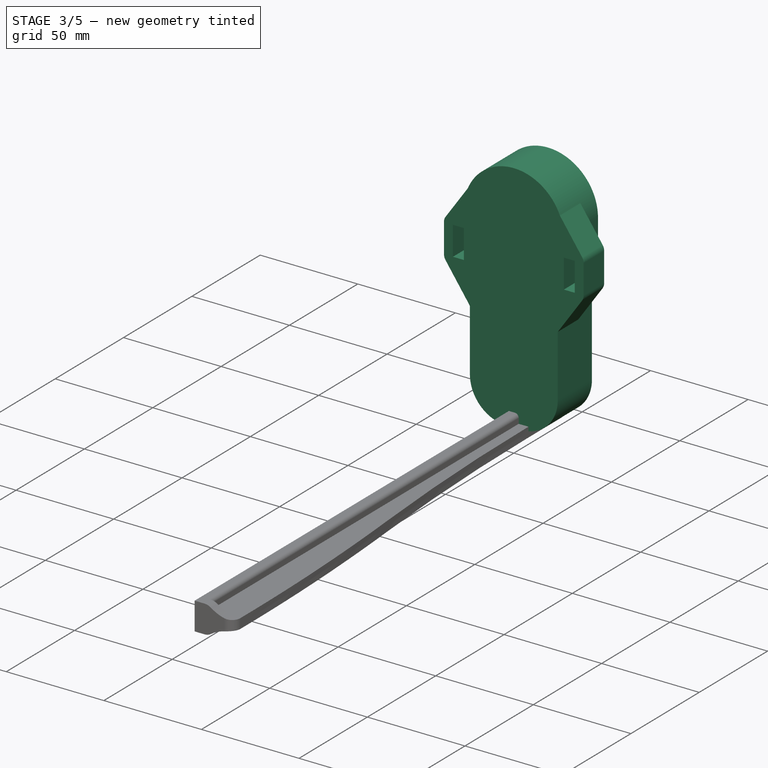
[diagram: stage 3 of 5 — iso view after this stage's code; geometry added in this stage tinted green]
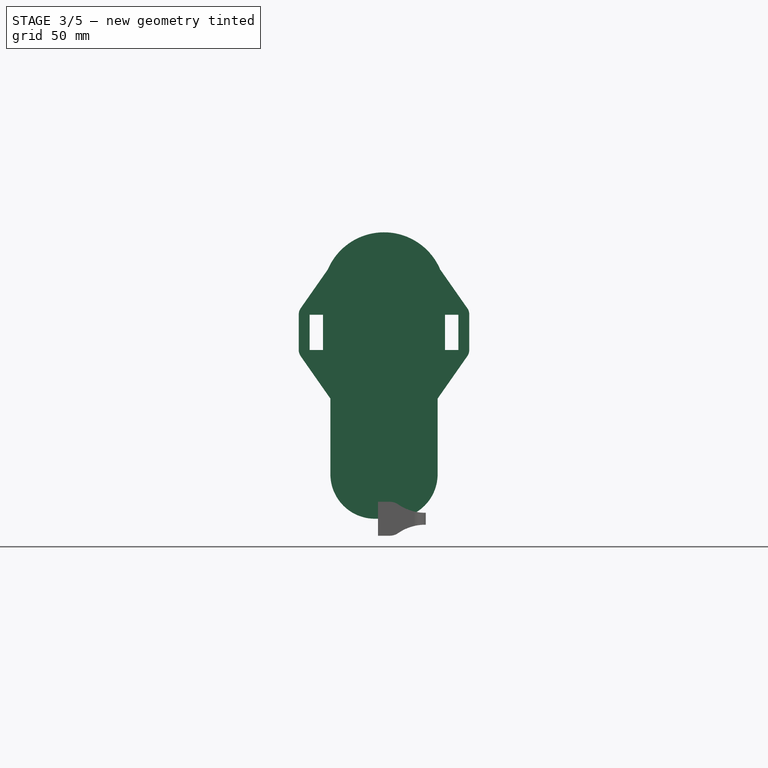
[diagram: stage 3 of 5 — front view after this stage's code; geometry added in this stage tinted green]
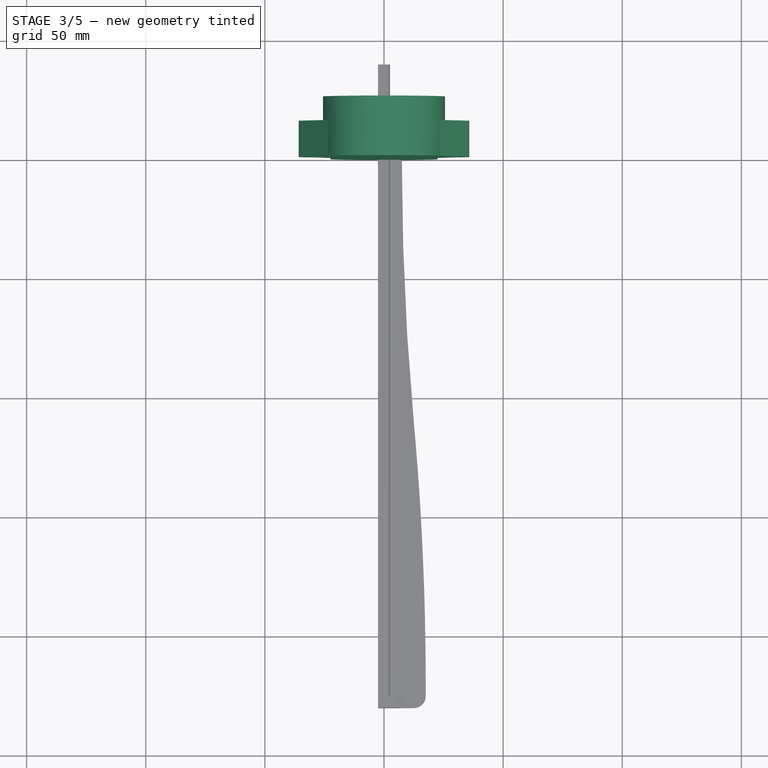
[diagram: stage 3 of 5 — top view after this stage's code; geometry added in this stage tinted green]
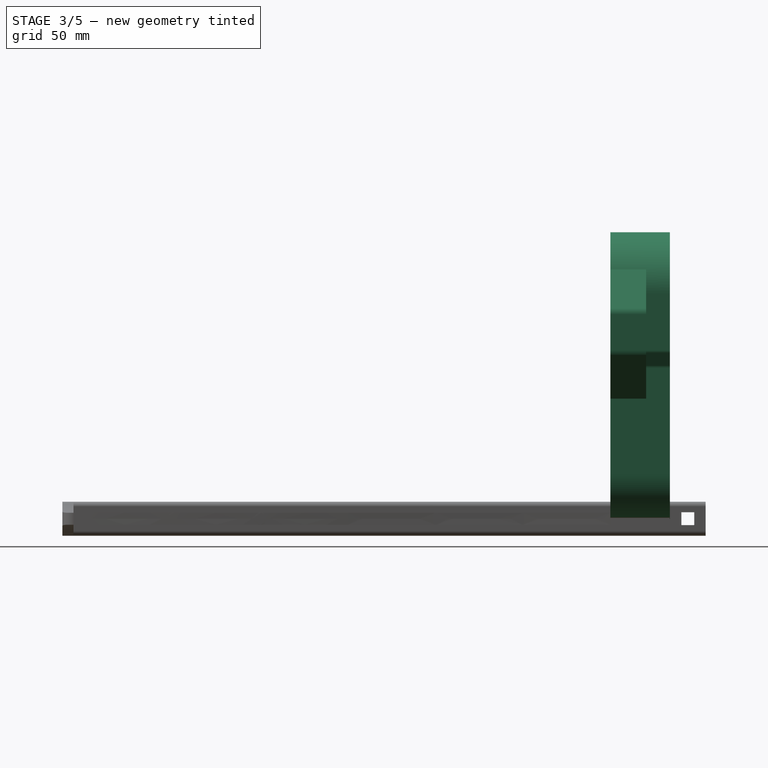
[diagram: stage 3 of 5 — right view after this stage's code; geometry added in this stage tinted green]
FEATURE [Sketcher::SketchObject] Sketch009  label="TelescopingPadBevelsCutSketch"
  FullyConstrained = true
  MapMode = 5
  Placement = pos=(0,0,0) rot=(1,0,0;1.5708rad)
  Support = -> [XZ_Plane002]
  expr: Constraints[32] = <<P90Measurements>>.PadBottomWidth
  expr: Constraints[29] = <<P90Measurements>>.PadWidestWidth
  expr: Constraints[31] = <<P90Measurements>>.PadWidestWidthInnerShoulderDistanceFromReferencePoint - 5mm
  expr: Constraints[30] = <<P90Measurements>>.PadThinnestWidth
  expr: Constraints[27] = <<P90Measurements>>.ButtOverallHeight
  sketch-geometry (15):
    g0: LineSegment StartX=-35.6159 StartY=130.218 StartZ=0 EndX=35.6159 EndY=130.218 EndZ=0
    g1: LineSegment StartX=35.6159 StartY=130.218 StartZ=0 EndX=35.6159 EndY=-10 EndZ=0
    g2: LineSegment StartX=35.6159 StartY=-10 StartZ=0 EndX=-35.6159 EndY=-10 EndZ=0
    g3: LineSegment StartX=-35.6159 StartY=-10 StartZ=0 EndX=-35.6159 EndY=130.218 EndZ=0
    g4: ArcOfCircle CenterX=-3.81 CenterY=18.6944 CenterZ=0 NormalX=0 NormalY=0 NormalZ=1 AngleXU=0 Radius=18.6944 StartAngle=3.14159 EndAngle=4.71239
    g5: ArcOfCircle CenterX=3.81 CenterY=18.6944 CenterZ=0 NormalX=0 NormalY=0 NormalZ=1 AngleXU=0 Radius=18.6944 StartAngle=4.71239 EndAngle=6.28319
    g6: ArcOfCircle CenterX=8e-16 CenterY=94.6023 CenterZ=0 NormalX=0 NormalY=0 NormalZ=1 AngleXU=0 Radius=25.6159 StartAngle=1.5708 EndAngle=3.14159
    g7: ArcOfCircle CenterX=8e-16 CenterY=94.6023 CenterZ=0 NormalX=0 NormalY=0 NormalZ=1 AngleXU=0 Radius=25.6159 StartAngle=0 EndAngle=1.5708
    g8: LineSegment StartX=-25.6159 StartY=94.6023 StartZ=0 EndX=-25.6159 EndY=59.3128 EndZ=0
    g9: LineSegment StartX=-25.6159 StartY=59.3128 StartZ=0 EndX=-22.5044 EndY=59.3128 EndZ=0
    g10: LineSegment StartX=-22.5044 StartY=59.3128 StartZ=0 EndX=-22.5044 EndY=18.6944 EndZ=0
    g11: LineSegment StartX=-3.81 StartY=0 StartZ=0 EndX=3.81 EndY=0 EndZ=0
    g12: LineSegment StartX=22.5044 StartY=18.6944 StartZ=0 EndX=22.5044 EndY=59.3128 EndZ=0
    g13: LineSegment StartX=22.5044 StartY=59.3128 StartZ=0 EndX=25.6159 EndY=59.3128 EndZ=0
    g14: LineSegment StartX=25.6159 StartY=59.3128 StartZ=0 EndX=25.6159 EndY=94.6023 EndZ=0
  constraints (39):
    c: Coincident(g0,g1)
    c: Coincident(g1,g2)
    c: Coincident(g2,g3)
    c: Coincident(g3,g0)
    c: Horizontal(g0)
    c: Vertical(g1)
    c: Vertical(g3)
    c: Symmetric(g2,g1,g-2)
    c: PointOnObject(g4,g-1)
    c: PointOnObject(g5,g-1)
    c: Vertical(g8)
    c: Coincident(g9,g8)
    c: Vertical(g10)
    c: Vertical(g12)
    c: Coincident(g13,g12)
    c: Vertical(g14)
    c: Coincident(g13,g14)
    c: Horizontal(g13)
    c: Tangent(g6,g8) = -1.5708
    c: Tangent(g7,g14) = -1.5708
    c: Tangent(g10,g4) = -1.5708
    c: Tangent(g11,g4) = -1.5708
    c: Tangent(g11,g5) = -1.5708
    c: Tangent(g12,g5) = -1.5708
    c: Symmetric(g12,g10,g-2)
    c: Symmetric(g8,g13,g-2)
    c: Coincident(g10,g9)
    c: DistanceY(g-1,g7) = 120.218
    c: Equal(g5,g4)
    c: DistanceX(g6,g7) = 51.2318
    c: DistanceX(g9,g12) = 45.0088
    c: DistanceY(g-1,g12) = 59.3128
    c: DistanceX(g11,g11) = 7.62
    c: PointOnObject(g6,g-2)
    c: Tangent(g6,g7) = -1.5708
    c: Equal(g8,g14)
    c: DistanceY(g2,g-1) = 10
    c: DistanceY(g6,g0) = 10
    c: DistanceX(g7,g1) = 10
FEATURE [PartDesign::Pocket] Pocket002  label="TelescopingPadBevelsCutPocket"
  BaseFeature = -> Pad006
  Length = 5
  Length2 = 100
  Midplane = true
  Placement = pos=(0,0,0) rot=(1,0,0;1.5708rad)
  Profile = -> Sketch009
  Type = 1
FEATURE [Sketcher::SketchObject] Sketch010  label="TelescopingBarInsertArmSketch"
  FullyConstrained = true
  MapMode = 5
  Placement = pos=(0,0,0) rot=(1,0,0;1.5708rad)
  Support = -> [XZ_Plane002]
  expr: Constraints[11] = <<TelescopingBarSettings>>.BarThickness + <<ProjectSettings>>.LooseTolerance * 2
  expr: Constraints[12] = <<P90Measurements>>.PadWidestWidthOuterShoulderDistanceFromReferencePoint + 0.1mm
  expr: Constraints[10] = <<P90Measurements>>.PadWidestWidth / 2
  expr: Constraints[13] = <<TelescopingBarSettings>>.BarThickness * 3 - 0.2mm
  expr: Constraints[15] = <<P90Measurements>>.PadThinnestWidth / 2
  sketch-geometry (10):
    g0: LineSegment StartX=31.2159 StartY=70.839 StartZ=0 EndX=31.2159 EndY=85.639 EndZ=0
    g1: LineSegment StartX=31.2159 StartY=85.639 StartZ=0 EndX=25.6159 EndY=85.639 EndZ=0
    g2: LineSegment StartX=25.6159 StartY=85.639 StartZ=0 EndX=25.6159 EndY=70.839 EndZ=0
    g3: LineSegment StartX=25.6159 StartY=70.839 StartZ=0 EndX=31.2159 EndY=70.839 EndZ=0
    g4: LineSegment StartX=35.7859 StartY=70.839 StartZ=0 EndX=35.7859 EndY=85.739 EndZ=0
    g5: LineSegment StartX=22.5044 StartY=106.148 StartZ=0 EndX=22.5044 EndY=50.4301 EndZ=0
    g6: ArcOfCircle CenterX=31.2159 CenterY=70.839 CenterZ=0 NormalX=0 NormalY=0 NormalZ=1 AngleXU=0 Radius=4.57 StartAngle=5.67232 EndAngle=6.28319
    g7: LineSegment StartX=22.5044 StartY=50.4301 StartZ=0 EndX=34.9594 EndY=68.2178 EndZ=0
    g8: LineSegment StartX=22.5044 StartY=106.148 StartZ=0 EndX=34.9594 EndY=88.3602 EndZ=0
    g9: ArcOfCircle CenterX=31.2159 CenterY=85.739 CenterZ=0 NormalX=0 NormalY=0 NormalZ=1 AngleXU=0 Radius=4.57 StartAngle=9e-16 EndAngle=0.610865
  constraints (28):
    c: Vertical(g0)
    c: Coincident(g0,g1)
    c: Horizontal(g1)
    c: Coincident(g1,g2)
    c: Vertical(g2)
    c: Coincident(g2,g3)
    c: Coincident(g3,g0)
    c: Vertical(g5)
    c: Vertical(g4)
    c: Horizontal(g3)
    c: DistanceX(g-1,g2) = 25.6159
    c: DistanceX(g1,g1) = 5.6
    c: DistanceY(g-1,g2) = 70.839
    c: DistanceY(g0,g0) = 14.8
    c: Coincident(g6,g0)
    c: DistanceX(g-1,g5) = 22.5044
    c: Coincident(g7,g5)
    c: Coincident(g8,g5)
    c: Tangent(g6,g4) = -1.5708
    c: Tangent(g7,g6) = -1.5708
    c: Equal(g7,g8)
    c: Angle(g4,g7) = 2.53073
    c: DistanceX(g-1,g4) = 35.7859  'DistanceFromCenterlineToOutsideOfBarInsertArm'
    c: PointOnObject(g9,g0)
    c: DistanceY(g0,g9) = 0.1
    c: Tangent(g9,g8) = 1.5708
    c: Tangent(g9,g4) = -1.5708
    c: Diameter(g9) = 9.14
FEATURE [Spreadsheet::Sheet] Spreadsheet003  label="TelescopingPadSettings"
  cells = A1=TelescopingBarInsertDepth; B1(TelescopingBarInsertDepth)==15mm; A2=TelescopingButtThickness; B2(TelescopingButtThickness)==10mm
FEATURE [PartDesign::Pad] Pad007  label="TelescopingBarInsertArmPad"
  BaseFeature = -> Pocket002
  Direction = (1,1,1)
  Length = 15
  Length2 = 100
  Placement = pos=(0,0,0) rot=(1,0,0;1.5708rad)
  Profile = -> Sketch010
  Reversed = true
  Type = 0
  expr: Length = <<TelescopingPadSettings>>.TelescopingBarInsertDepth
FEATURE [Sketcher::SketchObject] Sketch011  label="CrosspinHoleSketch"
  FullyConstrained = true
  MapMode = 5
  Placement = pos=(0,0,0) rot=(0.57735,0.57735,0.57735;2.0944rad)
  Support = -> [YZ_Plane002]
  expr: Constraints[8] = <<TelescopingBarSettings>>.CrosspinThickness + <<ProjectSettings>>.LooseTolerance * 2
  expr: Constraints[10] = <<P90Measurements>>.PadWidestWidthOuterShoulderDistanceFromReferencePoint + <<TelescopingBarSettings>>.BarThickness - <<ProjectSettings>>.LooseTolerance
  expr: Constraints[11] = <<TelescopingBarSettings>>.BarThickness - <<ProjectSettings>>.LooseTolerance
  sketch-geometry (4):
    g0: LineSegment StartX=4.7 StartY=81.039 StartZ=0 EndX=10.3 EndY=81.039 EndZ=0
    g1: LineSegment StartX=10.3 StartY=81.039 StartZ=0 EndX=10.3 EndY=75.439 EndZ=0
    g2: LineSegment StartX=10.3 StartY=75.439 StartZ=0 EndX=4.7 EndY=75.439 EndZ=0
    g3: LineSegment StartX=4.7 StartY=75.439 StartZ=0 EndX=4.7 EndY=81.039 EndZ=0
  constraints (12):
    c: Coincident(g0,g1)
    c: Coincident(g1,g2)
    c: Coincident(g2,g3)
    c: Coincident(g3,g0)
    c: Horizontal(g0)
    c: Horizontal(g2)
    c: Vertical(g1)
    c: Vertical(g3)
    c: DistanceX(g0,g0) = 5.6
    c: Equal(g0,g3)
    c: DistanceY(g-1,g2) = 75.439
    c: DistanceX(g-1,g2) = 4.7
FEATURE [PartDesign::Mirrored] Mirrored  label="TelescopingBarInsertArmMirror"
  BaseFeature = -> Pad007
  MirrorPlane = -> Sketch010 [V_Axis]
  Originals = -> [Pad007]
  Placement = pos=(0,0,0) rot=(1,0,0;1.5708rad)
FEATURE [Sketcher::SketchObject] Sketch013  label="BarRackSketch"
  FullyConstrained = true
  MapMode = 5
  Placement = pos=(0,0,0) rot=(0.57735,0.57735,0.57735;2.0944rad)
  Support = -> [YZ_Plane001]
  expr: Constraints[11] = <<P90Measurements>>.SpaceForTelescopingBar / 2 - <<ProjectSettings>>.LooseTolerance
  expr: Constraints[9] = <<CentralPadSettings>>.PadThickness + 5mm + <<ProjectSettings>>.LooseTolerance
  expr: Constraints[8] = <<TelescopingBarSettings>>.CrosspinThickness + <<ProjectSettings>>.LooseTolerance * 2
  expr: Constraints[7] = <<TelescopingBarSettings>>.BarThickness / 2
  sketch-geometry (4):
    g0: LineSegment StartX=6.70347 StartY=7.1168 StartZ=0 EndX=20.3 EndY=7.1168 EndZ=0
    g1: LineSegment StartX=20.3 StartY=7.1168 StartZ=0 EndX=20.3 EndY=2.5 EndZ=0
    g2: LineSegment StartX=20.3 StartY=2.5 StartZ=0 EndX=14.7 EndY=2.5 EndZ=0
    g3: LineSegment StartX=14.7 StartY=2.5 StartZ=0 EndX=6.70347 EndY=7.1168 EndZ=0
  constraints (12):
    c: Coincident(g0,g1)
    c: Coincident(g1,g2)
    c: Coincident(g2,g3)
    c: Coincident(g3,g0)
    c: Horizontal(g0)
    c: Horizontal(g2)
    c: Vertical(g1)
    c: DistanceY(g-1,g1) = 2.5
    c: DistanceX(g2,g2) = 5.6
    c: DistanceX(g-1,g1) = 20.3
    c: Angle(g2,g3) = 2.61799
    c: DistanceY(g-1,g0) = 7.1168
FEATURE [Spreadsheet::Sheet] Spreadsheet004  label="CentralPadSettings"
  cells = A1=PadThickness; B1(PadThickness)==<<PadBodyPad>>.Length; A2=LockingButtonHoleDepth; B2(LockingButtonHoleDepth)==<<P90Measurements>>.PadWidestWidthOuterShoulderDistanceFromReferencePoint + <<TelescopingBarSettings>>.BarThickness + <<TelescopingBarSettings>>.LockingPinThickness * 3 + SpringMaxHeight; A3=SpringMaxHeight; B3(SpringMaxHeight)==20mm
FEATURE [PartDesign::Pocket] Pocket005  label="BarRackPocket"
  BaseFeature = -> Pocket004
  Length = 5
  Length2 = 100
  Midplane = true
  Placement = pos=(0,0,0) rot=(1,0,0;1.5708rad)
  Profile = -> Sketch013
  Type = 1
FEATURE [PartDesign::LinearPattern] LinearPattern  label="BarRackPattern"
  BaseFeature = -> Pocket005
  Direction = -> Sketch013 [H_Axis]
  Length = 197.143
  Occurrences = 6
  Originals = -> [Pocket005]
  Placement = pos=(0,0,0) rot=(1,0,0;1.5708rad)
  Reversed = true
  expr: Length = (<<TelescopingBarSettings>>.BarLength - <<TelescopingBarSettings>>.BarOffsetFromCenter) / (Occurrences + 1) * Occurrences
  expr: Occurrences = <<TelescopingBarSettings>>.BarNumberOfKnotches
FEATURE [Sketcher::SketchObject] Sketch015  label="FinalSlotSketch"
  FullyConstrained = true
  MapMode = 5
  Placement = pos=(0,0,0) rot=(0.57735,0.57735,0.57735;2.0944rad)
  Support = -> [YZ_Plane001]
  expr: Constraints[11] = <<TelescopingBarSettings>>.BarThickness / 2
  expr: Constraints[10] = <<P90Measurements>>.SpaceForTelescopingBar / 2 - <<ProjectSettings>>.LooseTolerance
  expr: Constraints[9] = <<TelescopingBarSettings>>.CrosspinThickness + <<ProjectSettings>>.LooseTolerance * 2
  expr: Constraints[8] = <<TelescopingBarSettings>>.BarLength - <<TelescopingBarSettings>>.BarOffsetFromCenter - <<CentralPadSettings>>.PadThickness - <<ProjectSettings>>.LooseTolerance
  sketch-geometry (4):
    g0: LineSegment StartX=-214.7 StartY=7.1168 StartZ=0 EndX=-220.3 EndY=7.1168 EndZ=0
    g1: LineSegment StartX=-220.3 StartY=7.1168 StartZ=0 EndX=-220.3 EndY=2.5 EndZ=0
    g2: LineSegment StartX=-220.3 StartY=2.5 StartZ=0 EndX=-214.7 EndY=2.5 EndZ=0
    g3: LineSegment StartX=-214.7 StartY=2.5 StartZ=0 EndX=-214.7 EndY=7.1168 EndZ=0
  constraints (12):
    c: Coincident(g0,g1)
    c: Coincident(g1,g2)
    c: Coincident(g2,g3)
    c: Coincident(g3,g0)
    c: Horizontal(g0)
    c: Horizontal(g2)
    c: Vertical(g1)
    c: Vertical(g3)
    c: DistanceX(g2,g-1) = 214.7
    c: DistanceX(g2,g2) = 5.6
    c: DistanceY(g-1,g0) = 7.1168
    c: DistanceY(g-1,g1) = 2.5
FEATURE [PartDesign::Pocket] Pocket006  label="FinalSlotPad"
  BaseFeature = -> LinearPattern
  Length = 5
  Length2 = 100
  Midplane = true
  Placement = pos=(0,0,0) rot=(1,0,0;1.5708rad)
  Profile = -> Sketch015
  Refine = true
  Type = 1
FEATURE [PartDesign::Body] Body  label="MainTelescopingBody"
  Group = -> [Sketch,Pad,Sketch001,Pad001,Sketch002,Pocket,Sketch003,Pad002,Sketch004,Pocket001,Sketch014,Pad008,Mirrored001,Sketch018,Pocket007,Sketch019,Pocket008,Sketch022,Pocket010,Fillet006,Fillet007]
  Origin = -> Origin
  Tip = -> Fillet007
FEATURE [App::Part] Part002  label="LockingMechanism"
  Group = -> [Body005,Body004]
  Origin = -> Origin009
FEATURE [App::Part] Part001  label="LockingAssembly"
  Group = -> [Body,Part002]
  Origin = -> Origin008
  Placement = pos=(0,205,0) rot=(0,0,1;0rad)
FEATURE [PartDesign::Fillet] Fillet008
  Base = -> Pocket006 [Edge156]
  BaseFeature = -> Pocket006
  Placement = pos=(0,0,0) rot=(1,0,0;1.5708rad)
  Radius = 5
  SupportTransform = false
FEATURE [PartDesign::Body] Body002  label="TelescopingPad"
  Group = -> [Sketch008,Pad006,Sketch009,Pocket002,Sketch010,Pad007,Sketch011,Mirrored,Pocket003,Fillet,Fillet002,Sketch029,Pocket014]
  Origin = -> Origin002
  Placement = pos=(0,15,0) rot=(0,0,1;0rad)
  Tip = -> Pocket014
  expr: .Placement.Base.y = <<PadBodyPad>>.Length
FEATURE [PartDesign::Fillet] Fillet010
  Base = -> Fillet008 [Edge107,Edge109,Edge129,Edge130,Edge131,Edge133,Edge132,Edge134,Edge135,Edge136,Edge137,Edge138,Edge139,Edge140,Edge141,Edge142,Edge143,Edge144,Edge145,Edge146,Edge151,Edge152,Edge155,Edge158,Edge156,Edge153,Edge157,Edge154,Edge150,Edge149,Edge106,Edge94,Edge44,Edge43,Edge40]
  BaseFeature = -> Fillet008
  Placement = pos=(0,0,0) rot=(1,0,0;1.5708rad)
  Radius = 2
  SupportTransform = false
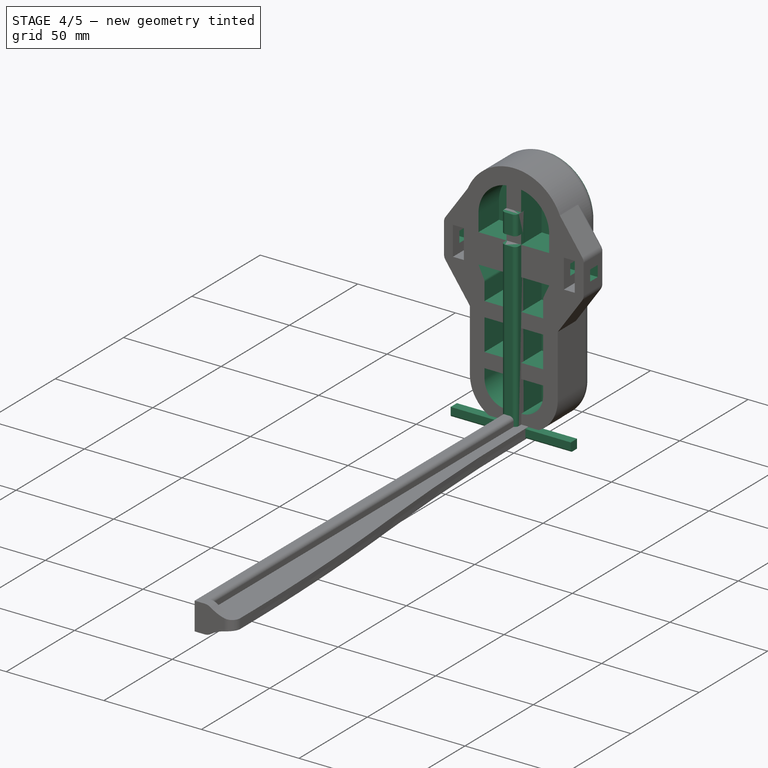
[diagram: stage 4 of 5 — iso view after this stage's code; geometry added in this stage tinted green]
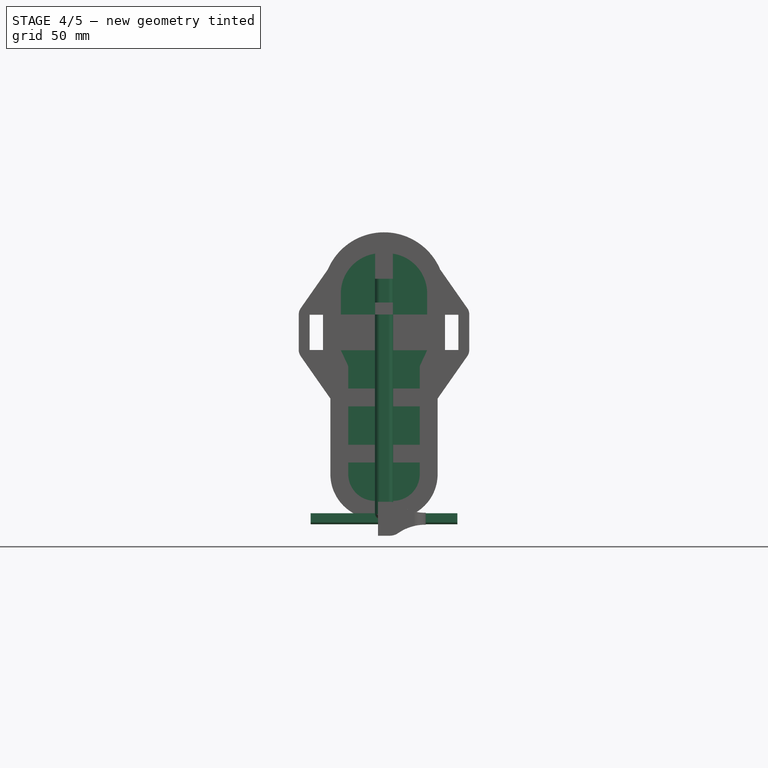
[diagram: stage 4 of 5 — front view after this stage's code; geometry added in this stage tinted green]
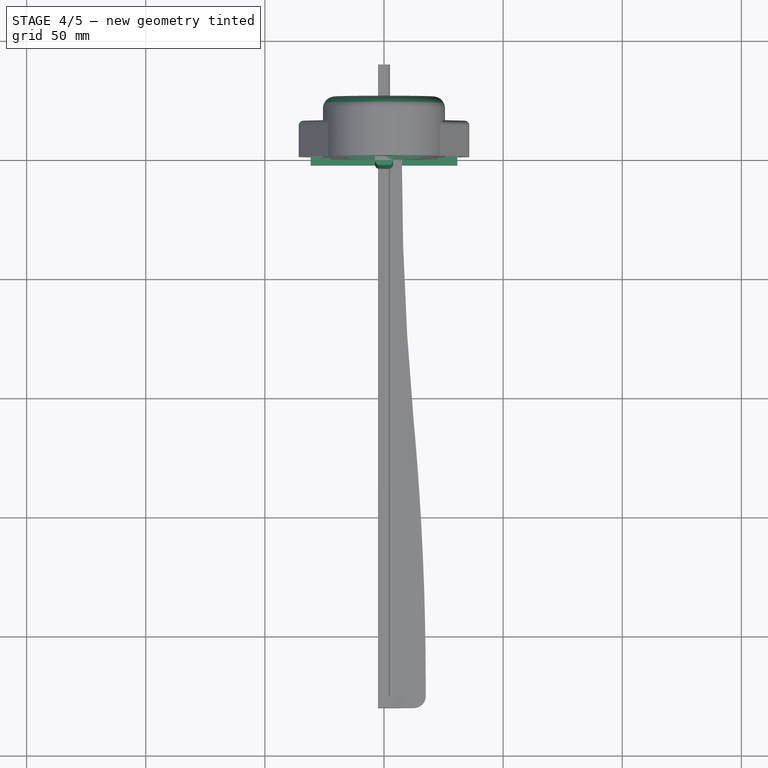
[diagram: stage 4 of 5 — top view after this stage's code; geometry added in this stage tinted green]
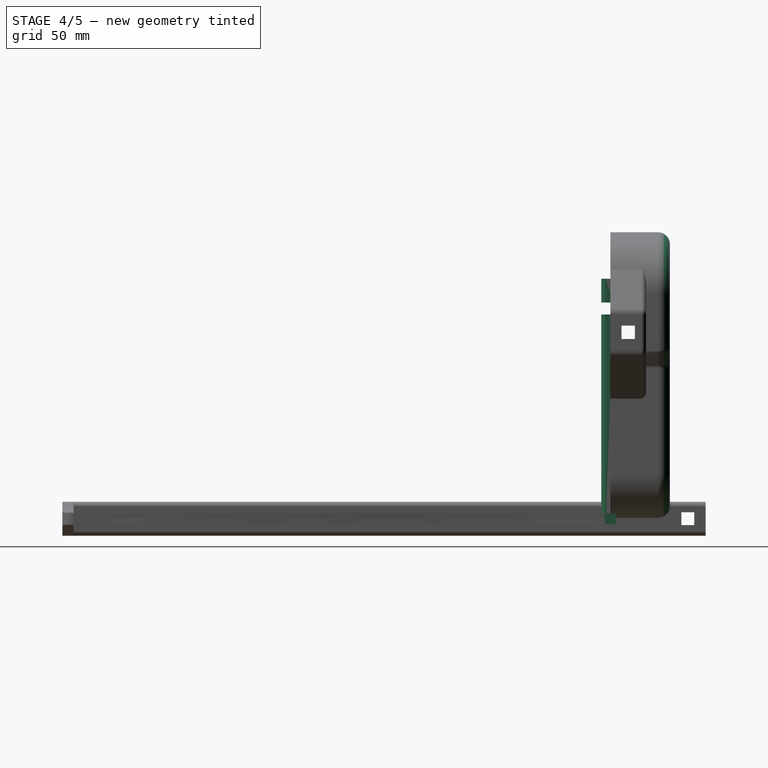
[diagram: stage 4 of 5 — right view after this stage's code; geometry added in this stage tinted green]
FEATURE [PartDesign::Pocket] Pocket003  label="CrosspinHolePocket"
  BaseFeature = -> Mirrored
  Length = 5
  Length2 = 100
  Midplane = true
  Placement = pos=(0,0,0) rot=(1,0,0;1.5708rad)
  Profile = -> Sketch011
  Type = 1
FEATURE [PartDesign::Fillet] Fillet  label="ComfortFillet"
  Base = -> Pocket003 [Edge76]
  BaseFeature = -> Pocket003
  Placement = pos=(0,0,0) rot=(1,0,0;1.5708rad)
  Radius = 5
  SupportTransform = false
FEATURE [PartDesign::Body] Body003  label="PadCrosspin"
  Group = -> [Sketch016,Pad009]
  Origin = -> Origin004
  Placement = pos=(0,22.5,78.239) rot=(0,0,1;0rad)
  Tip = -> Pad009
  expr: .Placement.Base.z = <<P90Measurements>>.PadWidestWidthOuterShoulderDistanceFromReferencePoint + <<TelescopingBarSettings>>.BarThickness + <<TelescopingBarSettings>>.CrosspinThickness / 2
  expr: .Placement.Base.y = <<TelescopingBarSettings>>.BarOffsetFromCenter - <<TelescopingBarSettings>>.BarThickness + <<ProjectSettings>>.LooseTolerance - <<TelescopingPadSettings>>.TelescopingButtThickness - <<TelescopingBarSettings>>.CrosspinThickness / 2 - <<ProjectSettings>>.LooseTolerance
FEATURE [Sketcher::SketchObject] Sketch017  label="LockingPinBodySketch"
  FullyConstrained = true
  MapMode = 5
  Placement = pos=(0,0,0) rot=(0.57735,0.57735,0.57735;2.0944rad)
  Support = -> [YZ_Plane005]
  expr: Constraints[6] = <<TelescopingBarSettings>>.LockingPinThickness - <<ProjectSettings>>.TightTolerance * 2
  sketch-geometry (4):
    g0: LineSegment StartX=-2.3 StartY=2.3 StartZ=0 EndX=2.3 EndY=2.3 EndZ=0
    g1: LineSegment StartX=2.3 StartY=2.3 StartZ=0 EndX=2.3 EndY=-2.3 EndZ=0
    g2: LineSegment StartX=2.3 StartY=-2.3 StartZ=0 EndX=-2.3 EndY=-2.3 EndZ=0
    g3: LineSegment StartX=-2.3 StartY=-2.3 StartZ=0 EndX=-2.3 EndY=2.3 EndZ=0
  constraints (10):
    c: Coincident(g0,g1)
    c: Coincident(g1,g2)
    c: Coincident(g2,g3)
    c: Coincident(g3,g0)
    c: Horizontal(g2)
    c: Vertical(g1)
    c: DistanceX(g0,g0) = 4.6
    c: Equal(g3,g0)
    c: Symmetric(g2,g0,g-1)
    c: Symmetric(g0,g0,g-2)
FEATURE [PartDesign::Pad] Pad010  label="LockingPinBodyPad"
  Direction = (1,1,1)
  Length = 61.5718
  Length2 = 100
  Midplane = true
  Placement = pos=(0,0,0) rot=(0.57735,0.57735,0.57735;2.0944rad)
  Profile = -> Sketch017
  Type = 0
  expr: Length = Sketch010.Constraints.DistanceFromCenterlineToOutsideOfBarInsertArm * 2 - <<TelescopingBarSettings>>.BarThickness * 2
FEATURE [Sketcher::SketchObject] Sketch020  label="ButtonBodySketch"
  FullyConstrained = true
  MapMode = 5
  Support = -> [XY_Plane006]
  expr: Constraints[8] = <<P90Measurements>>.PadBottomWidth
  sketch-geometry (4):
    g0: LineSegment StartX=-3.81 StartY=3.81 StartZ=0 EndX=3.81 EndY=3.81 EndZ=0
    g1: LineSegment StartX=3.81 StartY=3.81 StartZ=0 EndX=3.81 EndY=-3.81 EndZ=0
    g2: LineSegment StartX=3.81 StartY=-3.81 StartZ=0 EndX=-3.81 EndY=-3.81 EndZ=0
    g3: LineSegment StartX=-3.81 StartY=-3.81 StartZ=0 EndX=-3.81 EndY=3.81 EndZ=0
  constraints (10):
    c: Coincident(g0,g1)
    c: Coincident(g1,g2)
    c: Coincident(g2,g3)
    c: Coincident(g3,g0)
    c: Horizontal(g0)
    c: Vertical(g1)
    c: Symmetric(g1,g2,g-2)
    c: Symmetric(g0,g2,g-1)
    c: DistanceX(g0,g0) = 7.62
    c: Equal(g0,g3)
FEATURE [PartDesign::Pad] Pad011  label="ButtonBodyPad"
  Direction = (1,1,1)
  Length = 100.739
  Length2 = 100
  Profile = -> Sketch020
  Type = 0
  expr: Length = <<CentralPadSettings>>.LockingButtonHoleDepth - 10mm
FEATURE [Sketcher::SketchObject] Sketch021  label="ButtonLockingPinHoleSketch"
  FullyConstrained = true
  MapMode = 5
  Placement = pos=(0,0,0) rot=(0.57735,0.57735,0.57735;2.0944rad)
  Support = -> [YZ_Plane006]
  expr: Constraints[9] = <<P90Measurements>>.PadWidestWidthOuterShoulderDistanceFromReferencePoint + <<TelescopingBarSettings>>.BarThickness + <<TelescopingBarSettings>>.LockingPinThickness * 2
  expr: Constraints[8] = <<TelescopingBarSettings>>.LockingPinThickness
  expr: Constraints[10] = <<P90Measurements>>.PadBottomWidth / 2
  sketch-geometry (4):
    g0: LineSegment StartX=-3.81 StartY=90.739 StartZ=0 EndX=1.19 EndY=90.739 EndZ=0
    g1: LineSegment StartX=1.19 StartY=90.739 StartZ=0 EndX=1.19 EndY=85.739 EndZ=0
    g2: LineSegment StartX=1.19 StartY=85.739 StartZ=0 EndX=-3.81 EndY=85.739 EndZ=0
    g3: LineSegment StartX=-3.81 StartY=85.739 StartZ=0 EndX=-3.81 EndY=90.739 EndZ=0
  constraints (12):
    c: Coincident(g0,g1)
    c: Coincident(g1,g2)
    c: Coincident(g2,g3)
    c: Coincident(g3,g0)
    c: Horizontal(g2)
    c: Vertical(g1)
    c: Vertical(g3)
    c: Equal(g3,g0)
    c: DistanceX(g0,g0) = 5
    c: DistanceY(g-1,g2) = 85.739
    c: DistanceX(g2,g-1) = 3.81
    c: Horizontal(g0)
FEATURE [PartDesign::Pocket] Pocket009  label="ButtonLockingPinHolePocket"
  BaseFeature = -> Pad011
  Length = 5
  Length2 = 100
  Midplane = true
  Profile = -> Sketch021
  Type = 1
FEATURE [PartDesign::Fillet] Fillet002  label="BarinsertArmFillet"
  Base = -> Fillet [Edge21,Edge133]
  BaseFeature = -> Fillet
  Placement = pos=(0,0,0) rot=(1,0,0;1.5708rad)
  Radius = 2
  SupportTransform = false
FEATURE [PartDesign::Fillet] Fillet004  label="Slide Fillet"
  Base = -> Pad010 [Edge8]
  BaseFeature = -> Pad010
  Placement = pos=(0,0,0) rot=(0.57735,0.57735,0.57735;2.0944rad)
  Radius = 1
  SupportTransform = false
FEATURE [PartDesign::Body] Body004  label="LockingPin"
  Group = -> [Sketch017,Pad010,Fillet004]
  Origin = -> Origin005
  Placement = pos=(0,7.5,82.939) rot=(0,0,1;0rad)
  Tip = -> Fillet004
  expr: .Placement.Base.y = <<CentralPadSettings>>.PadThickness / 2
  expr: .Placement.Base.z = <<P90Measurements>>.PadWidestWidthOuterShoulderDistanceFromReferencePoint + <<TelescopingBarSettings>>.BarThickness * 2 - <<ProjectSettings>>.LooseTolerance + <<TelescopingBarSettings>>.LockingPinThickness / 2
FEATURE [PartDesign::Fillet] Fillet005
  Base = -> Pocket009 [Face4,Edge2,Edge13,Edge11,Edge1,Edge7,Edge17]
  BaseFeature = -> Pocket009
  Radius = 2
  SupportTransform = false
FEATURE [Sketcher::SketchObject] Sketch029  label="LightningCutSketch"
  FullyConstrained = false
  MapMode = 5
  Placement = pos=(0,0,0) rot=(1,0,0;1.5708rad)
  Support = -> [XZ_Plane002]
  expr: Constraints[82] = <<P90Measurements>>.PadThinnestWidth - 15mm
  expr: Constraints[92] = <<P90Measurements>>.PadWidestWidthOuterShoulderDistanceFromReferencePoint
  expr: Constraints[94] = <<P90Measurements>>.PadWidestWidth - 15mm
  sketch-geometry (36):
    g0: ArcOfCircle CenterX=-3.75 CenterY=18.7544 CenterZ=0 NormalX=0 NormalY=0 NormalZ=1 AngleXU=0 Radius=11.2544 StartAngle=3.14159 EndAngle=4.71239
    g1: ArcOfCircle CenterX=3.75 CenterY=18.7544 CenterZ=0 NormalX=0 NormalY=0 NormalZ=1 AngleXU=0 Radius=11.2544 StartAngle=4.71239 EndAngle=6.28319
    g2: LineSegment StartX=15.0044 StartY=18.7544 StartZ=0 EndX=15.0044 EndY=23.5797 EndZ=0
    g3: LineSegment StartX=18.1159 StartY=85.739 StartZ=0 EndX=18.1159 EndY=94.5613 EndZ=0
    g4: LineSegment StartX=-15.0044 StartY=18.7544 StartZ=0 EndX=-15.0044 EndY=23.5797 EndZ=0
    g5: LineSegment StartX=-18.1159 StartY=85.739 StartZ=0 EndX=-18.1159 EndY=94.5613 EndZ=0
    g6: ArcOfCircle CenterX=-17.5044 CenterY=63.5146 CenterZ=0 NormalX=0 NormalY=0 NormalZ=1 AngleXU=0 Radius=2.5 StartAngle=-9e-16 EndAngle=0.436488
    g7: ArcOfCircle CenterX=17.5044 CenterY=63.5146 CenterZ=0 NormalX=0 NormalY=0 NormalZ=1 AngleXU=0 Radius=2.5 StartAngle=2.7051 EndAngle=3.14159
    g8: LineSegment StartX=-18.1159 StartY=70.739 StartZ=0 EndX=-15.2388 EndY=64.5715 EndZ=0
    g9: LineSegment StartX=15.2388 StartY=64.5715 StartZ=0 EndX=18.1159 EndY=70.739 EndZ=0
    g10: ArcOfCircle CenterX=-1.23963 CenterY=94.5613 CenterZ=0 NormalX=0 NormalY=0 NormalZ=1 AngleXU=0 Radius=16.8763 StartAngle=1.7201 EndAngle=3.14159
    g11: ArcOfCircle CenterX=1.23963 CenterY=94.5613 CenterZ=0 NormalX=0 NormalY=0 NormalZ=1 AngleXU=0 Radius=16.8763 StartAngle=1e-16 EndAngle=1.42149
    g12: LineSegment StartX=-3.75 StartY=111.25 StartZ=0 EndX=-3.75 EndY=85.739 EndZ=0
    g13: LineSegment StartX=-3.75 StartY=85.739 StartZ=0 EndX=-18.1159 EndY=85.739 EndZ=0
    g14: LineSegment StartX=3.75 StartY=111.25 StartZ=0 EndX=3.75 EndY=85.739 EndZ=0
    g15: LineSegment StartX=3.75 StartY=85.739 StartZ=0 EndX=18.1159 EndY=85.739 EndZ=0
    g16: LineSegment StartX=-3.75 StartY=7.5 StartZ=0 EndX=-3.75 EndY=23.5797 EndZ=0
    g17: LineSegment StartX=-3.75 StartY=31.0797 StartZ=0 EndX=-15.0044 EndY=31.0797 EndZ=0
    g18: LineSegment StartX=3.75 StartY=7.5 StartZ=0 EndX=3.75 EndY=23.5797 EndZ=0
    g19: LineSegment StartX=3.75 StartY=31.0797 StartZ=0 EndX=15.0044 EndY=31.0797 EndZ=0
    g20: LineSegment StartX=15.0044 StartY=23.5797 StartZ=0 EndX=3.75 EndY=23.5797 EndZ=0
    g21: LineSegment StartX=-3.75 StartY=31.0797 StartZ=0 EndX=-3.75 EndY=47.1593 EndZ=0
    g22: LineSegment StartX=3.75 StartY=47.1593 StartZ=0 EndX=15.0044 EndY=47.1593 EndZ=0
    g23: LineSegment StartX=15.0044 StartY=54.6593 StartZ=0 EndX=3.75 EndY=54.6593 EndZ=0
    g24: LineSegment StartX=3.75 StartY=54.6593 StartZ=0 EndX=3.75 EndY=70.739 EndZ=0
    g25: LineSegment StartX=3.75 StartY=70.739 StartZ=0 EndX=18.1159 EndY=70.739 EndZ=0
    g26: LineSegment StartX=-15.0044 StartY=23.5797 StartZ=0 EndX=-3.75 EndY=23.5797 EndZ=0
    g27: LineSegment StartX=3.75 StartY=31.0797 StartZ=0 EndX=3.75 EndY=47.1593 EndZ=0
    g28: LineSegment StartX=-3.75 StartY=47.1593 StartZ=0 EndX=-15.0044 EndY=47.1593 EndZ=0
    g29: LineSegment StartX=-15.0044 StartY=54.6593 StartZ=0 EndX=-3.75 EndY=54.6593 EndZ=0
    g30: LineSegment StartX=-3.75 StartY=54.6593 StartZ=0 EndX=-3.75 EndY=70.739 EndZ=0
    g31: LineSegment StartX=-3.75 StartY=70.739 StartZ=0 EndX=-18.1159 EndY=70.739 EndZ=0
    g32: LineSegment StartX=-15.0044 StartY=54.6593 StartZ=0 EndX=-15.0044 EndY=63.5146 EndZ=0
    g33: LineSegment StartX=15.0044 StartY=54.6593 StartZ=0 EndX=15.0044 EndY=63.5146 EndZ=0
    g34: LineSegment StartX=15.0044 StartY=31.0797 StartZ=0 EndX=15.0044 EndY=47.1593 EndZ=0
    g35: LineSegment StartX=-15.0044 StartY=31.0797 StartZ=0 EndX=-15.0044 EndY=47.1593 EndZ=0
  constraints (99):
    c: DistanceX(g13,g13) = 14.3659  'TopLeftPocketShorrtestWidth'
    c: DistanceX(g17,g17) = 11.2544  'BottomMidLeftPocketShorrtestWidth'
    c: Symmetric(g14,g12,g-2)
    c: Coincident(g5,g13)
    c: Vertical(g5)
    c: Tangent(g32,g6) = -1.5708
    c: Tangent(g6,g8) = 1.5708
    c: Coincident(g8,g31)
    c: Horizontal(g31)
    c: Horizontal(g25)
    c: Horizontal(g25,g31)
    c: Coincident(g25,g9)
    c: Vertical(g33)
    c: Horizontal(g23)
    c: Vertical(g24)
    c: Vertical(g30)
    c: Horizontal(g29)
    c: Vertical(g32)
    c: Horizontal(g20)
    c: Horizontal(g26)
    c: Horizontal(g19)
    c: Horizontal(g17)
    c: Horizontal(g28)
    c: Horizontal(g22)
    c: Horizontal(g15)
    c: Vertical(g12)
    c: Vertical(g14)
    c: Vertical(g21)
    c: Vertical(g34)
    c: Vertical(g35)
    c: Vertical(g2)
    c: Vertical(g4)
    c: Vertical(g16)
    c: Coincident(g28,g35)
    c: Coincident(g29,g32)
    c: Coincident(g29,g30)
    c: Coincident(g23,g24)
    c: Coincident(g23,g33)
    c: Tangent(g7,g33) = 1.5708
    c: Coincident(g24,g25)
    c: Coincident(g30,g31)
    c: Coincident(g17,g35)
    c: Coincident(g21,g28)
    c: Coincident(g22,g27)
    c: Coincident(g17,g21)
    c: Coincident(g19,g27)
    c: Coincident(g19,g34)
    c: Coincident(g22,g34)
    c: Coincident(g2,g20)
    c: Coincident(g18,g20)
    c: Coincident(g16,g26)
    c: Coincident(g4,g26)
    c: Coincident(g0,g4)
    c: DistanceX(g16,g18) = 7.5
    c: Coincident(g1,g18)
    c: Coincident(g16,g0)
    c: Symmetric(g1,g0,g-2)
    c: Symmetric(g17,g19,g-2)
    c: Symmetric(g16,g18,g-2)
    c: Symmetric(g29,g23,g-2)
    c: Coincident(g12,g13)
    c: Coincident(g14,g15)
    c: Coincident(g3,g15)
    c: Coincident(g10,g12)
    c: Coincident(g11,g14)
    c: Vertical(g3)
    c: Horizontal(g13)
    c: Vertical(g16,g17)
    c: Vertical(g21,g29)
    c: Vertical(g30,g12)
    c: Horizontal(g10,g11)
    c: Equal(g25,g31)
    c: Diameter(g6) = 5
    c: Equal(g7,g6)
    c: Symmetric(g6,g9,g-2)
    c: Vertical(g4,g17)
    c: Vertical(g28,g29)
    c: Vertical(g2,g19)
    c: Vertical(g22,g23)
    c: Vertical(g3,g9)
    c: Vertical(g8,g5)
    c: DistanceY(g30,g12) = 15
    c: DistanceX(g4,g2) = 30.0088
    c: Tangent(g0,g4)
    c: Tangent(g1,g2) = -1.5708
    c: DistanceY(g-1,g1) = 7.5
    c: Equal(g0,g1)
    c: DistanceY(g16,g17) = 7.5
    c: DistanceY(g21,g29) = 7.5
    c: Equal(g30,g21)
    c: Equal(g21,g16)
    c: Symmetric(g21,g22,g-2)
    c: DistanceY(g-1,g8) = 70.739
    c: Tangent(g7,g9) = 1.5708
    c: DistanceX(g5,g3) = 36.2318
    c: Equal(g5,g3)
    c: Tangent(g5,g10) = 1.5708
    c: Tangent(g3,g11) = -1.5708
    c: Perpendicular(g1,g18)
FEATURE [PartDesign::Pocket] Pocket014  label="LightningCutPocket"
  BaseFeature = -> Fillet002
  Length = 15
  Length2 = 100
  Placement = pos=(0,0,0) rot=(1,0,0;1.5708rad)
  Profile = -> Sketch029
  Type = 0
  expr: Length = <<TelescopingPadSettings>>.TelescopingButtThickness + 5mm
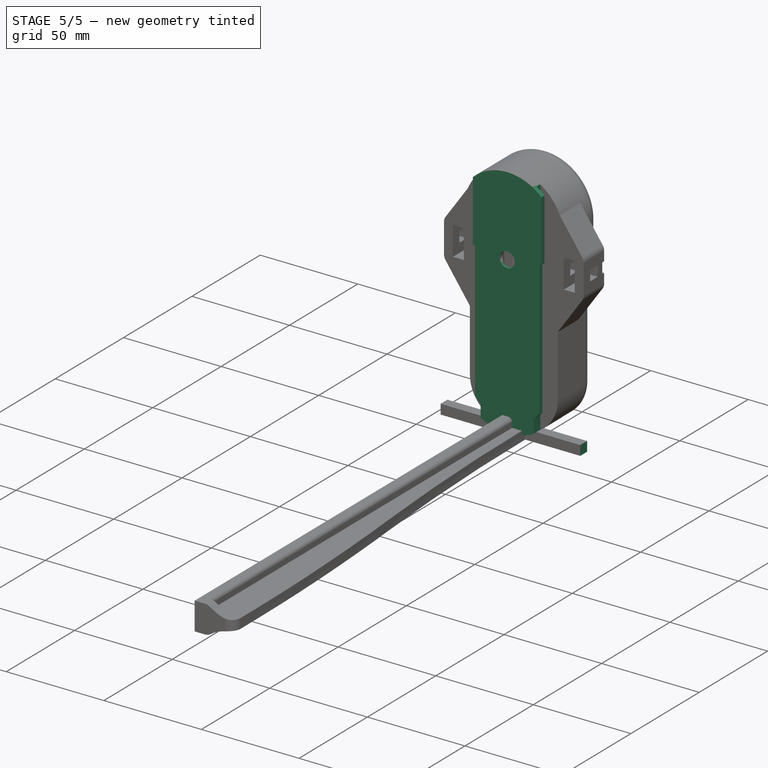
[diagram: stage 5 of 5 — iso view after this stage's code; geometry added in this stage tinted green]
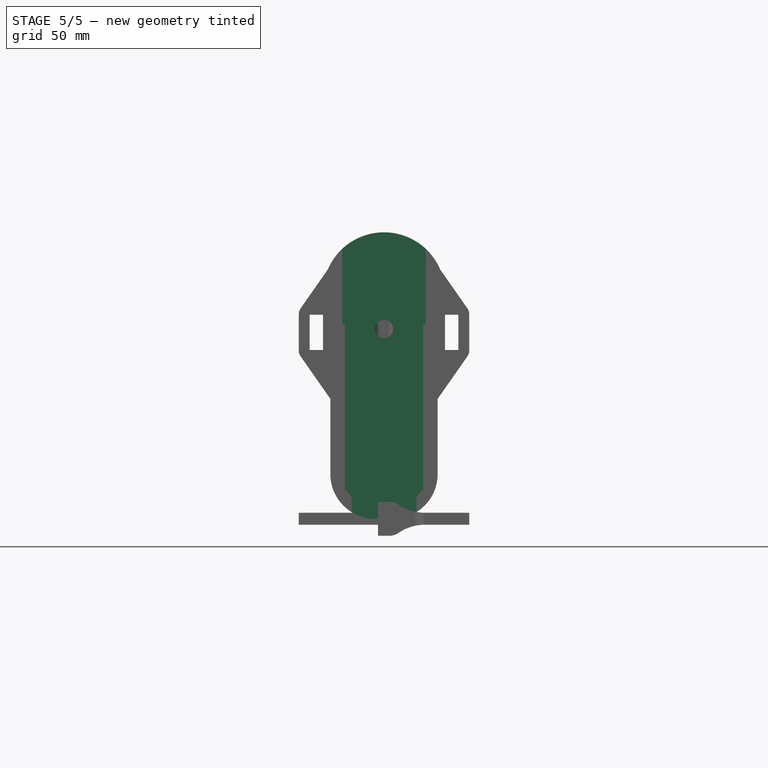
[diagram: stage 5 of 5 — front view after this stage's code; geometry added in this stage tinted green]
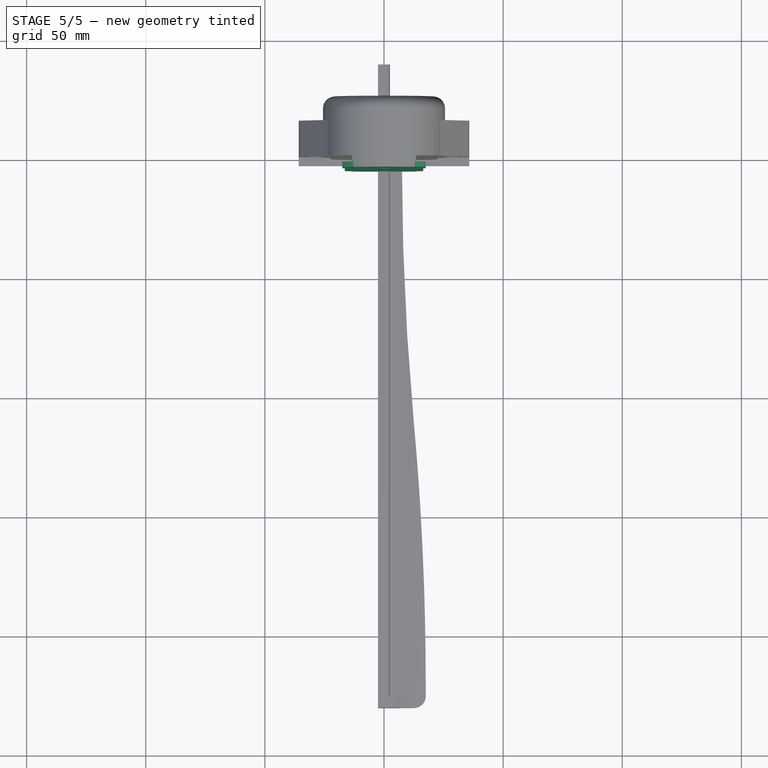
[diagram: stage 5 of 5 — top view after this stage's code; geometry added in this stage tinted green]
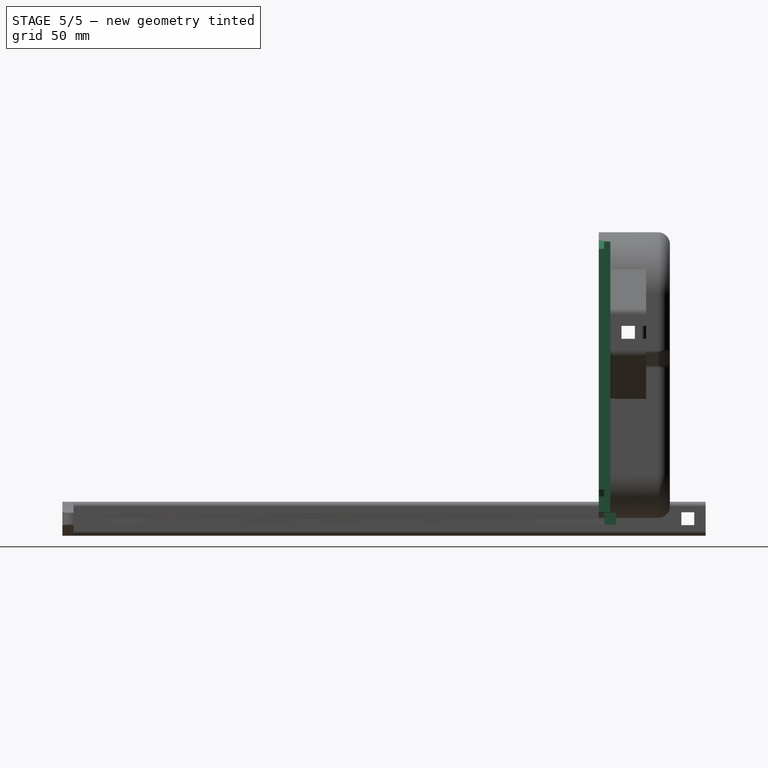
[diagram: stage 5 of 5 — right view after this stage's code; geometry added in this stage tinted green]
FEATURE [Sketcher::SketchObject] Sketch004  label="PadBevelsCutSketch"
  FullyConstrained = true
  MapMode = 5
  Placement = pos=(0,0,0) rot=(1,0,0;1.5708rad)
  Support = -> [XZ_Plane]
  expr: Constraints[27] = <<P90Measurements>>.ButtOverallHeight
  expr: Constraints[30] = <<P90Measurements>>.PadThinnestWidth
  expr: Constraints[31] = <<P90Measurements>>.PadWidestWidthInnerShoulderDistanceFromReferencePoint - 5mm
  expr: Constraints[29] = <<P90Measurements>>.PadWidestWidth
  expr: Constraints[32] = <<P90Measurements>>.PadBottomWidth
  sketch-geometry (15):
    g0: LineSegment StartX=-35.6159 StartY=130.218 StartZ=0 EndX=35.6159 EndY=130.218 EndZ=0
    g1: LineSegment StartX=35.6159 StartY=130.218 StartZ=0 EndX=35.6159 EndY=-10 EndZ=0
    g2: LineSegment StartX=35.6159 StartY=-10 StartZ=0 EndX=-35.6159 EndY=-10 EndZ=0
    g3: LineSegment StartX=-35.6159 StartY=-10 StartZ=0 EndX=-35.6159 EndY=130.218 EndZ=0
    g4: ArcOfCircle CenterX=-3.81 CenterY=18.6944 CenterZ=0 NormalX=0 NormalY=0 NormalZ=1 AngleXU=0 Radius=18.6944 StartAngle=3.14159 EndAngle=4.71239
    g5: ArcOfCircle CenterX=3.81 CenterY=18.6944 CenterZ=0 NormalX=0 NormalY=0 NormalZ=1 AngleXU=0 Radius=18.6944 StartAngle=4.71239 EndAngle=6.28319
    g6: ArcOfCircle CenterX=2.5e-15 CenterY=94.6023 CenterZ=0 NormalX=0 NormalY=0 NormalZ=1 AngleXU=0 Radius=25.6159 StartAngle=1.5708 EndAngle=3.14159
    g7: ArcOfCircle CenterX=2.5e-15 CenterY=94.6023 CenterZ=0 NormalX=0 NormalY=0 NormalZ=1 AngleXU=0 Radius=25.6159 StartAngle=0 EndAngle=1.5708
    g8: LineSegment StartX=-25.6159 StartY=94.6023 StartZ=0 EndX=-25.6159 EndY=59.3128 EndZ=0
    g9: LineSegment StartX=-25.6159 StartY=59.3128 StartZ=0 EndX=-22.5044 EndY=59.3128 EndZ=0
    g10: LineSegment StartX=-22.5044 StartY=59.3128 StartZ=0 EndX=-22.5044 EndY=18.6944 EndZ=0
    g11: LineSegment StartX=-3.81 StartY=0 StartZ=0 EndX=3.81 EndY=0 EndZ=0
    g12: LineSegment StartX=22.5044 StartY=18.6944 StartZ=0 EndX=22.5044 EndY=59.3128 EndZ=0
    g13: LineSegment StartX=22.5044 StartY=59.3128 StartZ=0 EndX=25.6159 EndY=59.3128 EndZ=0
    g14: LineSegment StartX=25.6159 StartY=59.3128 StartZ=0 EndX=25.6159 EndY=94.6023 EndZ=0
  constraints (39):
    c: Coincident(g0,g1)
    c: Coincident(g1,g2)
    c: Coincident(g2,g3)
    c: Coincident(g3,g0)
    c: Horizontal(g0)
    c: Vertical(g1)
    c: Vertical(g3)
    c: Symmetric(g2,g1,g-2)
    c: PointOnObject(g4,g-1)
    c: PointOnObject(g5,g-1)
    c: Vertical(g8)
    c: Coincident(g9,g8)
    c: Vertical(g10)
    c: Vertical(g12)
    c: Coincident(g13,g12)
    c: Vertical(g14)
    c: Coincident(g13,g14)
    c: Horizontal(g13)
    c: Tangent(g6,g8) = -1.5708
    c: Tangent(g7,g14) = -1.5708
    c: Tangent(g10,g4) = -1.5708
    c: Tangent(g11,g4) = -1.5708
    c: Tangent(g11,g5) = -1.5708
    c: Tangent(g12,g5) = -1.5708
    c: Symmetric(g12,g10,g-2)
    c: Symmetric(g8,g13,g-2)
    c: Coincident(g10,g9)
    c: DistanceY(g-1,g7) = 120.218
    c: Equal(g5,g4)
    c: DistanceX(g6,g7) = 51.2318
    c: DistanceX(g9,g12) = 45.0088
    c: DistanceY(g-1,g12) = 59.3128
    c: DistanceX(g11,g11) = 7.62
    c: PointOnObject(g6,g-2)
    c: Tangent(g6,g7) = -1.5708
    c: Equal(g8,g14)
    c: DistanceY(g2,g-1) = 10
    c: DistanceY(g6,g0) = 10
    c: DistanceX(g7,g1) = 10
FEATURE [PartDesign::Pocket] Pocket001  label="PadBevelsCutPocket"
  BaseFeature = -> Pad002
  Length = 5
  Length2 = 100
  Midplane = true
  Placement = pos=(0,0,0) rot=(1,0,0;1.5708rad)
  Profile = -> Sketch004
  Type = 1
FEATURE [Sketcher::SketchObject] Sketch014  label="CentralPadTelescopingBarInsertArmSketch"
  FullyConstrained = true
  MapMode = 5
  Placement = pos=(0,0,0) rot=(1,0,0;1.5708rad)
  Support = -> [XZ_Plane]
  expr: Constraints[34] = <<TelescopingBarSettings>>.BarThickness + <<ProjectSettings>>.TightTolerance * 2
  expr: Constraints[16] = <<P90Measurements>>.PadThinnestWidth / 2
  expr: Constraints[13] = <<TelescopingBarSettings>>.BarThickness * 3
  expr: Constraints[10] = <<P90Measurements>>.PadWidestWidth / 2
  expr: Constraints[12] = <<P90Measurements>>.PadWidestWidthOuterShoulderDistanceFromReferencePoint
  expr: Constraints[11] = <<TelescopingBarSettings>>.BarThickness + <<ProjectSettings>>.LooseTolerance * 2
  sketch-geometry (14):
    g0: LineSegment StartX=31.2159 StartY=70.739 StartZ=0 EndX=31.2159 EndY=75.539 EndZ=0
    g1: LineSegment StartX=31.2159 StartY=85.739 StartZ=0 EndX=25.6159 EndY=85.739 EndZ=0
    g2: LineSegment StartX=25.6159 StartY=85.739 StartZ=0 EndX=25.6159 EndY=70.739 EndZ=0
    g3: LineSegment StartX=25.6159 StartY=70.739 StartZ=0 EndX=31.2159 EndY=70.739 EndZ=0
    g4: LineSegment StartX=35.7859 StartY=70.739 StartZ=0 EndX=35.7859 EndY=75.539 EndZ=0
    g5: LineSegment StartX=22.5044 StartY=106.148 StartZ=0 EndX=22.5044 EndY=50.3301 EndZ=0
    g6: ArcOfCircle CenterX=31.2159 CenterY=85.739 CenterZ=0 NormalX=0 NormalY=0 NormalZ=1 AngleXU=0 Radius=4.57 StartAngle=5e-16 EndAngle=0.610865
    g7: ArcOfCircle CenterX=31.2159 CenterY=70.739 CenterZ=0 NormalX=0 NormalY=0 NormalZ=1 AngleXU=0 Radius=4.57 StartAngle=5.67232 EndAngle=6.28319
    g8: LineSegment StartX=22.5044 StartY=50.3301 StartZ=0 EndX=34.9594 EndY=68.1178 EndZ=0
    g9: LineSegment StartX=22.5044 StartY=106.148 StartZ=0 EndX=34.9594 EndY=88.3602 EndZ=0
    g10: LineSegment StartX=31.2159 StartY=80.939 StartZ=0 EndX=35.7859 EndY=80.939 EndZ=0
    g11: LineSegment StartX=31.2159 StartY=75.539 StartZ=0 EndX=35.7859 EndY=75.539 EndZ=0
    g12: LineSegment StartX=31.2159 StartY=80.939 StartZ=0 EndX=31.2159 EndY=85.739 EndZ=0
    g13: LineSegment StartX=35.7859 StartY=80.939 StartZ=0 EndX=35.7859 EndY=85.739 EndZ=0
  constraints (36):
    c: Vertical(g0)
    c: Coincident(g12,g1)
    c: Horizontal(g1)
    c: Coincident(g1,g2)
    c: Vertical(g2)
    c: Coincident(g2,g3)
    c: Coincident(g3,g0)
    c: Vertical(g5)
    c: Vertical(g4)
    c: Horizontal(g3)
    c: DistanceX(g-1,g2) = 25.6159
    c: DistanceX(g1,g1) = 5.6
    c: DistanceY(g-1,g2) = 70.739
    c: DistanceY(g0,g12) = 15
    c: Coincident(g6,g12)
    c: Coincident(g7,g0)
    c: DistanceX(g-1,g5) = 22.5044
    c: Coincident(g8,g5)
    c: Coincident(g9,g5)
    c: Tangent(g7,g4) = -1.5708
    c: Tangent(g9,g6) = 1.5708
    c: Tangent(g8,g7) = -1.5708
    c: Diameter(g6) = 9.14
    c: Equal(g8,g9)
    c: Angle(g4,g8) = 2.53073
    c: Horizontal(g11)
    c: Horizontal(g10)
    c: Coincident(g0,g11)
    c: Coincident(g12,g10)
    c: Tangent(g0,g12)
    c: Coincident(g4,g11)
    c: Coincident(g13,g10)
    c: Tangent(g4,g13)
    c: Tangent(g6,g13) = -1.5708
    c: DistanceY(g4,g10) = 5.4
    c: Equal(g12,g0)
FEATURE [PartDesign::Pad] Pad008  label="CentralPadTelescopingBarInsertArmPad"
  BaseFeature = -> Pocket001
  Direction = (1,1,1)
  Length = 15
  Length2 = 100
  Placement = pos=(0,0,0) rot=(1,0,0;1.5708rad)
  Profile = -> Sketch014
  Reversed = true
  Type = 0
  expr: Length = <<CentralPadSettings>>.PadThickness
FEATURE [PartDesign::Mirrored] Mirrored001  label="CentralPadTelescopingBarInsertArmMirror"
  BaseFeature = -> Pad008
  MirrorPlane = -> Sketch014 [V_Axis]
  Originals = -> [Pad008]
  Placement = pos=(0,0,0) rot=(1,0,0;1.5708rad)
FEATURE [Sketcher::SketchObject] Sketch016  label="CrosspinBodySketch"
  FullyConstrained = true
  MapMode = 5
  Placement = pos=(0,0,0) rot=(0.57735,0.57735,0.57735;2.0944rad)
  Support = -> [YZ_Plane004]
  expr: Constraints[6] = <<TelescopingBarSettings>>.CrosspinThickness
  sketch-geometry (4):
    g0: LineSegment StartX=-2.5 StartY=2.5 StartZ=0 EndX=2.5 EndY=2.5 EndZ=0
    g1: LineSegment StartX=2.5 StartY=2.5 StartZ=0 EndX=2.5 EndY=-2.5 EndZ=0
    g2: LineSegment StartX=2.5 StartY=-2.5 StartZ=0 EndX=-2.5 EndY=-2.5 EndZ=0
    g3: LineSegment StartX=-2.5 StartY=-2.5 StartZ=0 EndX=-2.5 EndY=2.5 EndZ=0
  constraints (10):
    c: Coincident(g0,g1)
    c: Coincident(g1,g2)
    c: Coincident(g2,g3)
    c: Coincident(g3,g0)
    c: Horizontal(g2)
    c: Vertical(g1)
    c: DistanceX(g0,g0) = 5
    c: Equal(g0,g3)
    c: Symmetric(g0,g2,g-1)
    c: Symmetric(g0,g0,g-2)
FEATURE [PartDesign::Pad] Pad009  label="CrosspinBodyPad"
  Direction = (1,1,1)
  Length = 71.5718
  Length2 = 100
  Midplane = true
  Placement = pos=(0,0,0) rot=(0.57735,0.57735,0.57735;2.0944rad)
  Profile = -> Sketch016
  Type = 0
  expr: Length = Sketch010.Constraints.DistanceFromCenterlineToOutsideOfBarInsertArm * 2
FEATURE [Sketcher::SketchObject] Sketch018  label="LockingPinHoleSketch"
  FullyConstrained = true
  MapMode = 5
  Placement = pos=(0,0,0) rot=(0.57735,0.57735,0.57735;2.0944rad)
  Support = -> [YZ_Plane]
  expr: Constraints[11] = <<TelescopingBarSettings>>.CrosspinThickness * 3 + <<ProjectSettings>>.LooseTolerance * 2
  expr: Constraints[10] = <<TelescopingBarSettings>>.BarThickness - <<ProjectSettings>>.LooseTolerance
  expr: Constraints[9] = <<P90Measurements>>.PadWidestWidthOuterShoulderDistanceFromReferencePoint + <<TelescopingBarSettings>>.BarThickness - <<ProjectSettings>>.LooseTolerance * 2
  expr: Constraints[8] = <<TelescopingBarSettings>>.CrosspinThickness + <<ProjectSettings>>.LooseTolerance * 2
  sketch-geometry (4):
    g0: LineSegment StartX=4.7 StartY=90.739 StartZ=0 EndX=10.3 EndY=90.739 EndZ=0
    g1: LineSegment StartX=10.3 StartY=90.739 StartZ=0 EndX=10.3 EndY=75.139 EndZ=0
    g2: LineSegment StartX=10.3 StartY=75.139 StartZ=0 EndX=4.7 EndY=75.139 EndZ=0
    g3: LineSegment StartX=4.7 StartY=75.139 StartZ=0 EndX=4.7 EndY=90.739 EndZ=0
  constraints (12):
    c: Coincident(g0,g1)
    c: Coincident(g1,g2)
    c: Coincident(g2,g3)
    c: Coincident(g3,g0)
    c: Horizontal(g0)
    c: Horizontal(g2)
    c: Vertical(g1)
    c: Vertical(g3)
    c: DistanceX(g0,g0) = 5.6
    c: DistanceY(g-1,g2) = 75.139
    c: DistanceX(g-1,g2) = 4.7
    c: DistanceY(g1,g1) = 15.6
FEATURE [PartDesign::Pocket] Pocket007  label="LockingPinHolePocket"
  BaseFeature = -> Mirrored001
  Length = 62.4318
  Length2 = 100
  Midplane = true
  Placement = pos=(0,0,0) rot=(1,0,0;1.5708rad)
  Profile = -> Sketch018
  Type = 0
  expr: Length = <<P90Measurements>>.PadWidestWidth + <<TelescopingBarSettings>>.BarThickness * 2 + <<ProjectSettings>>.LooseTolerance * 4
FEATURE [Sketcher::SketchObject] Sketch019  label="LockingButtonHoleSketch"
  FullyConstrained = true
  MapMode = 5
  Support = -> [XY_Plane]
  expr: Constraints[9] = <<P90Measurements>>.PadBottomWidth + <<ProjectSettings>>.LooseTolerance * 2
  expr: Constraints[10] = <<CentralPadSettings>>.PadThickness / 2 - <<TelescopingBarSettings>>.LockingPinThickness / 2 - <<ProjectSettings>>.LooseTolerance
  sketch-geometry (4):
    g0: LineSegment StartX=-4.11 StartY=12.92 StartZ=0 EndX=4.11 EndY=12.92 EndZ=0
    g1: LineSegment StartX=4.11 StartY=12.92 StartZ=0 EndX=4.11 EndY=4.7 EndZ=0
    g2: LineSegment StartX=4.11 StartY=4.7 StartZ=0 EndX=-4.11 EndY=4.7 EndZ=0
    g3: LineSegment StartX=-4.11 StartY=4.7 StartZ=0 EndX=-4.11 EndY=12.92 EndZ=0
  constraints (11):
    c: Coincident(g0,g1)
    c: Coincident(g1,g2)
    c: Coincident(g2,g3)
    c: Coincident(g3,g0)
    c: Horizontal(g2)
    c: Vertical(g1)
    c: Vertical(g3)
    c: Equal(g0,g1)
    c: Symmetric(g0,g0,g-2)
    c: DistanceX(g0,g0) = 8.22
    c: DistanceY(g-1,g2) = 4.7
FEATURE [PartDesign::Pocket] Pocket008  label="LockingButtonHolePocket"
  BaseFeature = -> Pocket007
  Length = 110.739
  Length2 = 100
  Placement = pos=(0,0,0) rot=(1,0,0;1.5708rad)
  Profile = -> Sketch019
  Reversed = true
  Type = 0
  expr: Length = <<CentralPadSettings>>.LockingButtonHoleDepth
FEATURE [Sketcher::SketchObject] Sketch022  label="BCGHoleSketch"
  AttachmentOffset = pos=(0,0,4.8768) rot=(0,0,1;0rad)
  FullyConstrained = true
  MapMode = 5
  Placement = pos=(0,-4.8768,-1.1e-15) rot=(1,0,0;1.5708rad)
  Support = -> [XZ_Plane]
  expr: .AttachmentOffset.Base.z = <<P90Measurements>>.DovetailHeight
  expr: Constraints[2] = <<P90Measurements>>.PadBCGHoleDiameter + <<ProjectSettings>>.LooseTolerance * 2
  expr: Constraints[1] = <<P90Measurements>>.PadBCGHoleFromReferencePoint + <<P90Measurements>>.PadBCGHoleDiameter / 2
  sketch-geometry (1):
    g0: Circle CenterX=0 CenterY=79.6417 CenterZ=0 NormalX=0 NormalY=0 NormalZ=1 AngleXU=0 Radius=3.8179
  constraints (3):
    c: PointOnObject(g0,g-2)
    c: DistanceY(g-1,g0) = 79.6417
    c: Diameter(g0) = 7.6358
FEATURE [PartDesign::Pocket] Pocket010  label="BCGHolePocket"
  BaseFeature = -> Pocket008
  Length = 9.525
  Length2 = 100
  Placement = pos=(0,0,0) rot=(1,0,0;1.5708rad)
  Profile = -> Sketch022
  Refine = true
  Type = 0
  expr: Length = <<P90Measurements>>.PadBCGHoleDepth
FEATURE [PartDesign::Body] Body005  label="LockingButton"
  Group = -> [Sketch020,Pad011,Sketch021,Pocket009,Fillet005]
  Origin = -> Origin006
  Placement = pos=(0,8.84,-5) rot=(0,0,1;0rad)
  Tip = -> Fillet005
  expr: .Placement.Base.y = <<CentralPadSettings>>.PadThickness / 2 - <<P90Measurements>>.PadBottomWidth / 2 + <<TelescopingBarSettings>>.LockingPinThickness + <<ProjectSettings>>.LooseTolerance / 2
FEATURE [PartDesign::Fillet] Fillet006
  Base = -> Pocket010 [Edge64,Edge173,Edge133,Edge158]
  BaseFeature = -> Pocket010
  Placement = pos=(0,0,0) rot=(1,0,0;1.5708rad)
  Radius = 2
  SupportTransform = false
FEATURE [PartDesign::Fillet] Fillet007
  Base = -> Fillet006 [Edge174,Edge176,Edge189,Edge177]
  BaseFeature = -> Fillet006
  Placement = pos=(0,0,0) rot=(1,0,0;1.5708rad)
  Radius = 2
  SupportTransform = false
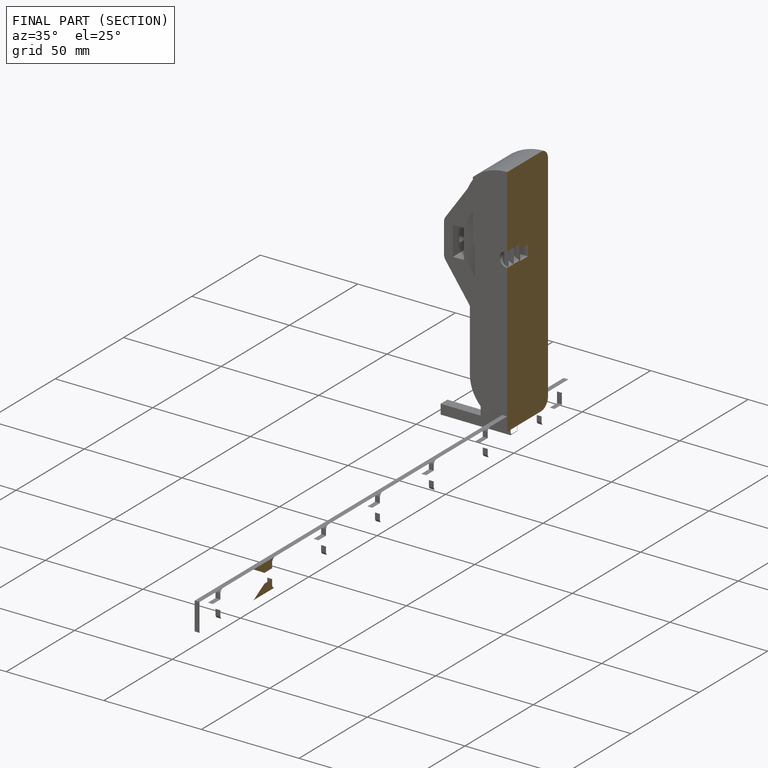
[diagram: finished part — half-section view (interior)]
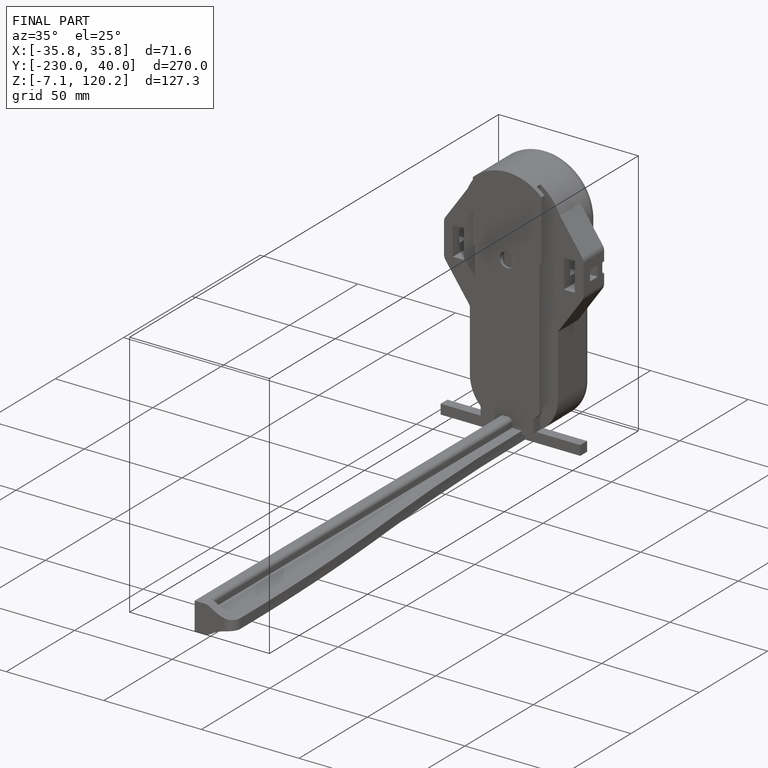
[diagram: finished part — iso view with bounding-box wireframe]
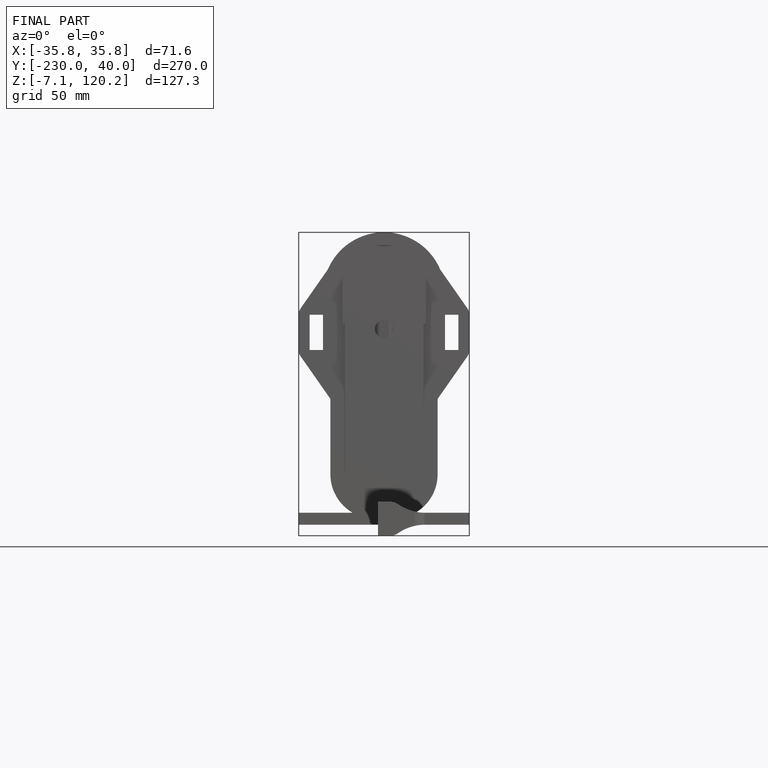
[diagram: finished part — front view with bounding-box wireframe]
